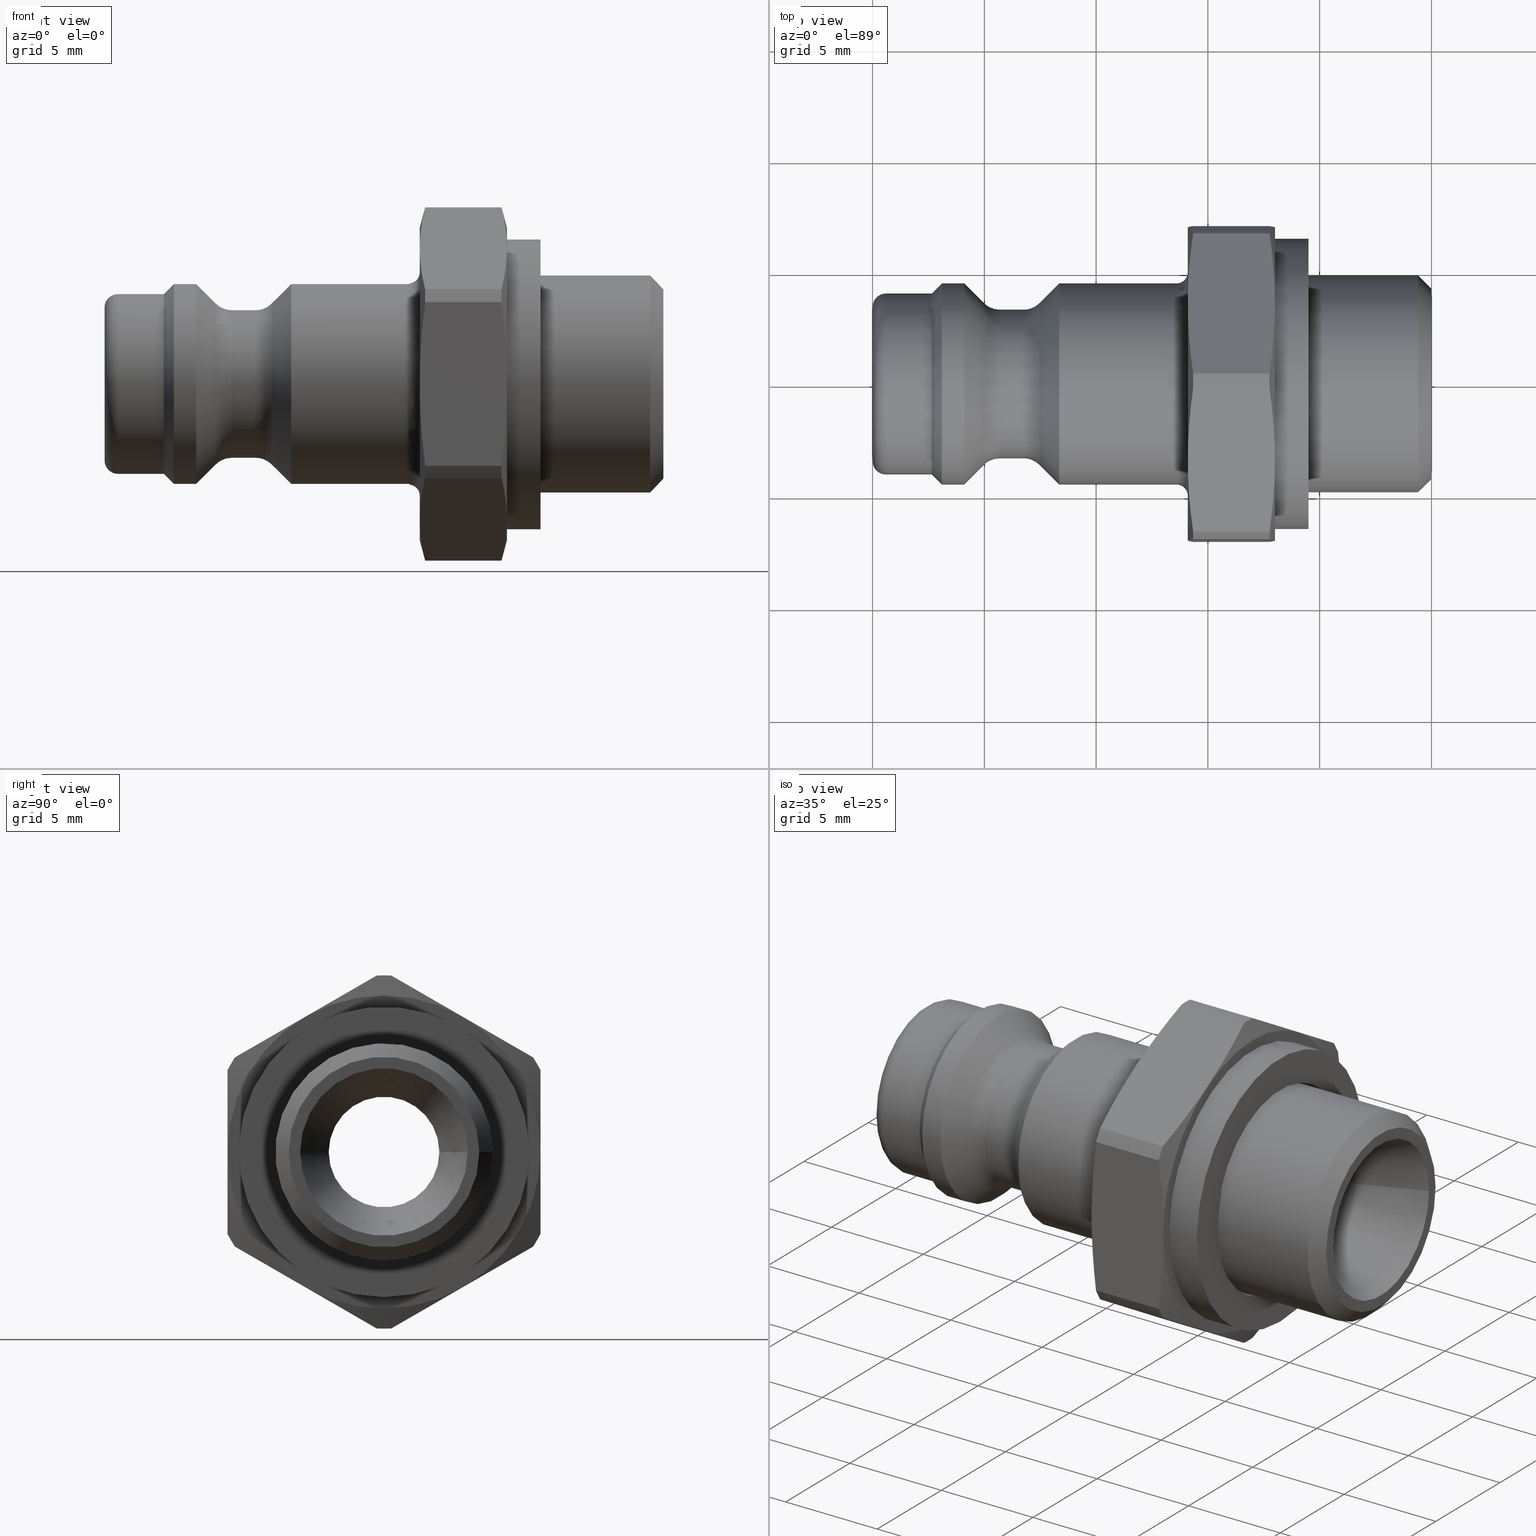
[diagram: canonical four-view strip — front | top / right | iso, engineering-drawing reading convention]
A machine part, canonical four-view strip (front | top / right | iso — engineering-drawing reading convention). The complete STEP part file that produces these views, byte-faithful:
ISO-10303-21;
HEADER;
/****************************************************************
 * Generated by software with PDE/Lib inside                    *
 * PDElib Version v51a, created Thu 01/14/2010                  *
 * ITI Transcendata (http://www.transcendata.com/)              *
 ****************************************************************/
FILE_DESCRIPTION((''),'2;1');
FILE_NAME('J:\\3D Zeichnungen_step\\Serie 21\\21sfaw10mxx.stp','2012-12-07T07:42:02',('IA176480'),(''),'Autodesk Inventor 2011','Autodesk Inventor 2011','');
FILE_SCHEMA(('AUTOMOTIVE_DESIGN { 1 0 10303 214 1 1 1 1 }'));
ENDSEC;
DATA;
#5=APPLICATION_CONTEXT('automotive design');
#6=APPLICATION_PROTOCOL_DEFINITION('International Standard','automotive_design',2001,#5);
#7=PRODUCT_CONTEXT('',#5,'mechanical');
#8=PRODUCT('D105315','D105315',$,(#7));
#9=PRODUCT_RELATED_PRODUCT_CATEGORY('part',$,(#8));
#10=PRODUCT_DEFINITION_FORMATION('',$,#8);
#11=PRODUCT_DEFINITION_CONTEXT('part definition',#5,'design');
#12=PRODUCT_DEFINITION('',$,#10,#11);
#18=(NAMED_UNIT(*)PLANE_ANGLE_UNIT()SI_UNIT($,.RADIAN.));
#19=DIMENSIONAL_EXPONENTS(0.0,0.0,0.0,0.0,0.0,0.0,0.0);
#20=PLANE_ANGLE_MEASURE_WITH_UNIT(PLANE_ANGLE_MEASURE(0.017453292500000),#18);
#24=(CONVERSION_BASED_UNIT('DEGREE',#20)NAMED_UNIT(#19)PLANE_ANGLE_UNIT());
#28=(NAMED_UNIT(*)SI_UNIT($,.STERADIAN.)SOLID_ANGLE_UNIT());
#32=(LENGTH_UNIT()NAMED_UNIT(*)SI_UNIT(.MILLI.,.METRE.));
#34=UNCERTAINTY_MEASURE_WITH_UNIT(LENGTH_MEASURE(0.010000000000000),#32,'DISTANCE_ACCURACY_VALUE','');
#36=(GEOMETRIC_REPRESENTATION_CONTEXT(3)GLOBAL_UNCERTAINTY_ASSIGNED_CONTEXT((#34))GLOBAL_UNIT_ASSIGNED_CONTEXT((#24,#28,#32))REPRESENTATION_CONTEXT('None','None'));
#37=AXIS2_PLACEMENT_3D('',#38,#39,#40);
#38=CARTESIAN_POINT('',(0.0,0.0,0.0));
#39=DIRECTION('',(0.0,0.0,1.0));
#40=DIRECTION('',(1.0,0.0,0.0));
#41=SHAPE_REPRESENTATION('',(#37,#1366,#1639),#36);
#42=PRODUCT_DEFINITION_SHAPE('','',#12);
#43=SHAPE_DEFINITION_REPRESENTATION(#42,#41);
#44=APPLICATION_CONTEXT('automotive design');
#45=APPLICATION_PROTOCOL_DEFINITION('International Standard','automotive_design',2001,#44);
#46=PRODUCT_CONTEXT('',#44,'mechanical');
#47=PRODUCT('D104294','D104294',$,(#46));
#48=PRODUCT_RELATED_PRODUCT_CATEGORY('part',$,(#47));
#49=PRODUCT_DEFINITION_FORMATION('',$,#47);
#50=PRODUCT_DEFINITION_CONTEXT('part definition',#44,'design');
#51=PRODUCT_DEFINITION('',$,#49,#50);
#57=(NAMED_UNIT(*)PLANE_ANGLE_UNIT()SI_UNIT($,.RADIAN.));
#58=DIMENSIONAL_EXPONENTS(0.0,0.0,0.0,0.0,0.0,0.0,0.0);
#59=PLANE_ANGLE_MEASURE_WITH_UNIT(PLANE_ANGLE_MEASURE(0.017453292500000),#57);
#63=(CONVERSION_BASED_UNIT('DEGREE',#59)NAMED_UNIT(#58)PLANE_ANGLE_UNIT());
#67=(NAMED_UNIT(*)SI_UNIT($,.STERADIAN.)SOLID_ANGLE_UNIT());
#71=(LENGTH_UNIT()NAMED_UNIT(*)SI_UNIT(.MILLI.,.METRE.));
#73=UNCERTAINTY_MEASURE_WITH_UNIT(LENGTH_MEASURE(0.010000000000000),#71,'DISTANCE_ACCURACY_VALUE','');
#75=(GEOMETRIC_REPRESENTATION_CONTEXT(3)GLOBAL_UNCERTAINTY_ASSIGNED_CONTEXT((#73))GLOBAL_UNIT_ASSIGNED_CONTEXT((#63,#67,#71))REPRESENTATION_CONTEXT('None','None'));
#76=AXIS2_PLACEMENT_3D('',#77,#78,#79);
#77=CARTESIAN_POINT('',(0.0,0.0,0.0));
#78=DIRECTION('',(0.0,0.0,1.0));
#79=DIRECTION('',(1.0,0.0,0.0));
#80=SHAPE_REPRESENTATION('',(#76),#75);
#81=PRODUCT_DEFINITION_SHAPE('','',#51);
#82=SHAPE_DEFINITION_REPRESENTATION(#81,#80);
#88=(NAMED_UNIT(*)PLANE_ANGLE_UNIT()SI_UNIT($,.RADIAN.));
#89=DIMENSIONAL_EXPONENTS(0.0,0.0,0.0,0.0,0.0,0.0,0.0);
#90=PLANE_ANGLE_MEASURE_WITH_UNIT(PLANE_ANGLE_MEASURE(0.017453292500000),#88);
#94=(CONVERSION_BASED_UNIT('DEGREE',#90)NAMED_UNIT(#89)PLANE_ANGLE_UNIT());
#98=(NAMED_UNIT(*)SI_UNIT($,.STERADIAN.)SOLID_ANGLE_UNIT());
#102=(LENGTH_UNIT()NAMED_UNIT(*)SI_UNIT(.MILLI.,.METRE.));
#104=UNCERTAINTY_MEASURE_WITH_UNIT(LENGTH_MEASURE(0.000001000000000),#102,'DISTANCE_ACCURACY_VALUE','');
#106=(GEOMETRIC_REPRESENTATION_CONTEXT(3)GLOBAL_UNCERTAINTY_ASSIGNED_CONTEXT((#104))GLOBAL_UNIT_ASSIGNED_CONTEXT((#94,#98,#102))REPRESENTATION_CONTEXT('','3D'));
#107=CARTESIAN_POINT('',(6.760786437626905,0.0,0.0));
#108=DIRECTION('',(1.0,0.0,0.0));
#109=DIRECTION('',(0.0,0.0,-1.0));
#110=AXIS2_PLACEMENT_3D('',#107,#108,#109);
#111=TOROIDAL_SURFACE('',#110,4.325000000000000,1.0);
#112=CARTESIAN_POINT('',(6.760786437626905,3.325000000000000,0.0));
#113=VERTEX_POINT('',#112);
#114=CARTESIAN_POINT('',(6.760786437626905,0.0,0.0));
#115=DIRECTION('',(1.0,0.0,0.0));
#116=DIRECTION('',(0.0,-1.0,0.0));
#117=AXIS2_PLACEMENT_3D('',#114,#115,#116);
#118=CIRCLE('',#117,3.325000000000000);
#119=EDGE_CURVE('',#113,#113,#118,.T.);
#120=ORIENTED_EDGE('',*,*,#119,.T.);
#121=EDGE_LOOP('',(#120));
#122=FACE_OUTER_BOUND('',#121,.T.);
#123=CARTESIAN_POINT('',(7.467893218813453,3.617893218813452,-8.861283E-016));
#124=VERTEX_POINT('',#123);
#125=CARTESIAN_POINT('',(7.467893218813453,0.0,-4.430641E-016));
#126=DIRECTION('',(-1.0,0.0,0.0));
#127=DIRECTION('',(0.0,-1.0,0.0));
#128=AXIS2_PLACEMENT_3D('',#125,#126,#127);
#129=CIRCLE('',#128,3.617893218813452);
#130=EDGE_CURVE('',#124,#124,#129,.T.);
#131=ORIENTED_EDGE('',*,*,#130,.T.);
#132=EDGE_LOOP('',(#131));
#133=FACE_BOUND('',#132,.T.);
#134=ADVANCED_FACE('',(#122,#133),#111,.F.);
#135=CARTESIAN_POINT('',(6.225000000000001,0.0,0.0));
#136=DIRECTION('',(1.0,0.0,0.0));
#137=DIRECTION('',(0.0,1.0,0.0));
#138=AXIS2_PLACEMENT_3D('',#135,#136,#137);
#139=CYLINDRICAL_SURFACE('',#138,3.325000000000000);
#140=CARTESIAN_POINT('',(5.689213562373095,3.325000000000000,-8.143901E-016));
#141=VERTEX_POINT('',#140);
#142=CARTESIAN_POINT('',(5.689213562373095,0.0,0.0));
#143=DIRECTION('',(-1.0,0.0,0.0));
#144=DIRECTION('',(0.0,-1.0,0.0));
#145=AXIS2_PLACEMENT_3D('',#142,#143,#144);
#146=CIRCLE('',#145,3.325000000000000);
#147=EDGE_CURVE('',#141,#141,#146,.T.);
#148=ORIENTED_EDGE('',*,*,#147,.F.);
#149=EDGE_LOOP('',(#148));
#150=FACE_OUTER_BOUND('',#149,.T.);
#151=ORIENTED_EDGE('',*,*,#119,.F.);
#152=EDGE_LOOP('',(#151));
#153=FACE_BOUND('',#152,.T.);
#154=ADVANCED_FACE('',(#150,#153),#139,.T.);
#155=CARTESIAN_POINT('',(7.762500000000000,0.0,0.0));
#156=DIRECTION('',(1.0,0.0,0.0));
#157=DIRECTION('',(0.0,1.0,0.0));
#158=AXIS2_PLACEMENT_3D('',#155,#156,#157);
#159=CONICAL_SURFACE('',#158,3.912500000000000,45.000000000000014);
#160=CARTESIAN_POINT('',(8.350000000000000,4.500000000000000,0.0));
#161=VERTEX_POINT('',#160);
#162=CARTESIAN_POINT('',(8.350000000000000,0.0,0.0));
#163=DIRECTION('',(1.0,0.0,0.0));
#164=DIRECTION('',(0.0,1.0,0.0));
#165=AXIS2_PLACEMENT_3D('',#162,#163,#164);
#166=CIRCLE('',#165,4.500000000000000);
#167=EDGE_CURVE('',#161,#161,#166,.T.);
#168=ORIENTED_EDGE('',*,*,#167,.F.);
#169=EDGE_LOOP('',(#168));
#170=FACE_OUTER_BOUND('',#169,.T.);
#171=ORIENTED_EDGE('',*,*,#130,.F.);
#172=EDGE_LOOP('',(#171));
#173=FACE_BOUND('',#172,.T.);
#174=ADVANCED_FACE('',(#170,#173),#159,.T.);
#175=CARTESIAN_POINT('',(5.689213562373095,0.0,0.0));
#176=DIRECTION('',(1.0,0.0,0.0));
#177=DIRECTION('',(0.0,0.0,-1.0));
#178=AXIS2_PLACEMENT_3D('',#175,#176,#177);
#179=TOROIDAL_SURFACE('',#178,4.325000000000000,1.0);
#180=CARTESIAN_POINT('',(4.982106781186547,3.617893218813452,-6.162976E-032));
#181=VERTEX_POINT('',#180);
#182=CARTESIAN_POINT('',(4.982106781186547,0.0,-4.430641E-016));
#183=DIRECTION('',(1.0,0.0,0.0));
#184=DIRECTION('',(0.0,-1.0,0.0));
#185=AXIS2_PLACEMENT_3D('',#182,#183,#184);
#186=CIRCLE('',#185,3.617893218813452);
#187=EDGE_CURVE('',#181,#181,#186,.T.);
#188=ORIENTED_EDGE('',*,*,#187,.T.);
#189=EDGE_LOOP('',(#188));
#190=FACE_OUTER_BOUND('',#189,.T.);
#191=ORIENTED_EDGE('',*,*,#147,.T.);
#192=EDGE_LOOP('',(#191));
#193=FACE_BOUND('',#192,.T.);
#194=ADVANCED_FACE('',(#190,#193),#179,.F.);
#195=CARTESIAN_POINT('',(4.687500000000000,0.0,0.0));
#196=DIRECTION('',(-1.0,0.0,0.0));
#197=DIRECTION('',(0.0,1.0,0.0));
#198=AXIS2_PLACEMENT_3D('',#195,#196,#197);
#199=CONICAL_SURFACE('',#198,3.912500000000000,45.000000000000007);
#200=CARTESIAN_POINT('',(4.100000000000000,4.500000000000000,0.0));
#201=VERTEX_POINT('',#200);
#202=CARTESIAN_POINT('',(4.100000000000000,0.0,0.0));
#203=DIRECTION('',(1.0,0.0,0.0));
#204=DIRECTION('',(0.0,1.0,0.0));
#205=AXIS2_PLACEMENT_3D('',#202,#203,#204);
#206=CIRCLE('',#205,4.500000000000000);
#207=EDGE_CURVE('',#201,#201,#206,.T.);
#208=ORIENTED_EDGE('',*,*,#207,.T.);
#209=EDGE_LOOP('',(#208));
#210=FACE_OUTER_BOUND('',#209,.T.);
#211=ORIENTED_EDGE('',*,*,#187,.F.);
#212=EDGE_LOOP('',(#211));
#213=FACE_BOUND('',#212,.T.);
#214=ADVANCED_FACE('',(#210,#213),#199,.T.);
#215=CARTESIAN_POINT('',(13.600000000000001,0.0,0.0));
#216=DIRECTION('',(1.0,0.0,0.0));
#217=DIRECTION('',(0.0,0.0,-1.0));
#218=AXIS2_PLACEMENT_3D('',#215,#216,#217);
#219=TOROIDAL_SURFACE('',#218,5.0,0.500000000000000);
#220=CARTESIAN_POINT('',(13.600000000000001,4.500000000000000,0.0));
#221=VERTEX_POINT('',#220);
#222=CARTESIAN_POINT('',(13.600000000000001,0.0,0.0));
#223=DIRECTION('',(1.0,0.0,0.0));
#224=DIRECTION('',(0.0,-1.0,0.0));
#225=AXIS2_PLACEMENT_3D('',#222,#223,#224);
#226=CIRCLE('',#225,4.500000000000000);
#227=EDGE_CURVE('',#221,#221,#226,.T.);
#228=ORIENTED_EDGE('',*,*,#227,.T.);
#229=EDGE_LOOP('',(#228));
#230=FACE_OUTER_BOUND('',#229,.T.);
#231=CARTESIAN_POINT('',(14.100000000000001,5.0,-1.224647E-015));
#232=VERTEX_POINT('',#231);
#233=CARTESIAN_POINT('',(14.100000000000001,0.0,0.0));
#234=DIRECTION('',(-1.0,0.0,0.0));
#235=DIRECTION('',(0.0,-1.0,0.0));
#236=AXIS2_PLACEMENT_3D('',#233,#234,#235);
#237=CIRCLE('',#236,5.0);
#238=EDGE_CURVE('',#232,#232,#237,.T.);
#239=ORIENTED_EDGE('',*,*,#238,.T.);
#240=EDGE_LOOP('',(#239));
#241=FACE_BOUND('',#240,.T.);
#242=ADVANCED_FACE('',(#230,#241),#219,.F.);
#243=CARTESIAN_POINT('',(11.225000000000001,0.0,0.0));
#244=DIRECTION('',(1.0,0.0,0.0));
#245=DIRECTION('',(0.0,1.0,0.0));
#246=AXIS2_PLACEMENT_3D('',#243,#244,#245);
#247=CYLINDRICAL_SURFACE('',#246,4.500000000000000);
#248=ORIENTED_EDGE('',*,*,#167,.T.);
#249=EDGE_LOOP('',(#248));
#250=FACE_OUTER_BOUND('',#249,.T.);
#251=ORIENTED_EDGE('',*,*,#227,.F.);
#252=EDGE_LOOP('',(#251));
#253=FACE_BOUND('',#252,.T.);
#254=ADVANCED_FACE('',(#250,#253),#247,.T.);
#255=CARTESIAN_POINT('',(14.100000000000001,5.750000000000001,0.0));
#256=DIRECTION('',(-1.0,0.0,0.0));
#257=DIRECTION('',(0.0,0.0,1.0));
#258=AXIS2_PLACEMENT_3D('',#255,#256,#257);
#259=PLANE('',#258);
#260=CARTESIAN_POINT('',(14.100000000000001,7.000000000000001,0.0));
#261=VERTEX_POINT('',#260);
#262=CARTESIAN_POINT('',(14.100000000000001,3.500000000000003,6.062177826491073));
#263=VERTEX_POINT('',#262);
#264=CARTESIAN_POINT('',(14.100000000000001,0.0,0.0));
#265=DIRECTION('',(1.0,0.0,0.0));
#266=DIRECTION('',(0.0,1.0,0.0));
#267=AXIS2_PLACEMENT_3D('',#264,#265,#266);
#268=CIRCLE('',#267,7.000000000000001);
#269=EDGE_CURVE('',#261,#263,#268,.T.);
#270=ORIENTED_EDGE('',*,*,#269,.F.);
#271=CARTESIAN_POINT('',(14.100000000000001,3.499999999999997,-6.062177826491078));
#272=VERTEX_POINT('',#271);
#273=CARTESIAN_POINT('',(14.100000000000001,0.0,0.0));
#274=DIRECTION('',(1.0,0.0,0.0));
#275=DIRECTION('',(0.0,1.0,0.0));
#276=AXIS2_PLACEMENT_3D('',#273,#274,#275);
#277=CIRCLE('',#276,7.000000000000001);
#278=EDGE_CURVE('',#272,#261,#277,.T.);
#279=ORIENTED_EDGE('',*,*,#278,.F.);
#280=CARTESIAN_POINT('',(14.100000000000001,-3.500000000000005,-6.062177826491072));
#281=VERTEX_POINT('',#280);
#282=CARTESIAN_POINT('',(14.100000000000001,0.0,0.0));
#283=DIRECTION('',(1.0,0.0,0.0));
#284=DIRECTION('',(0.0,1.0,0.0));
#285=AXIS2_PLACEMENT_3D('',#282,#283,#284);
#286=CIRCLE('',#285,7.000000000000001);
#287=EDGE_CURVE('',#281,#272,#286,.T.);
#288=ORIENTED_EDGE('',*,*,#287,.F.);
#289=CARTESIAN_POINT('',(14.100000000000001,-7.000000000000004,1.165734E-015));
#290=VERTEX_POINT('',#289);
#291=CARTESIAN_POINT('',(14.100000000000001,0.0,0.0));
#292=DIRECTION('',(1.0,0.0,0.0));
#293=DIRECTION('',(0.0,1.0,0.0));
#294=AXIS2_PLACEMENT_3D('',#291,#292,#293);
#295=CIRCLE('',#294,7.000000000000001);
#296=EDGE_CURVE('',#290,#281,#295,.T.);
#297=ORIENTED_EDGE('',*,*,#296,.F.);
#298=CARTESIAN_POINT('',(14.100000000000001,-3.500000000000001,6.062177826491075));
#299=VERTEX_POINT('',#298);
#300=CARTESIAN_POINT('',(14.100000000000001,0.0,0.0));
#301=DIRECTION('',(1.0,0.0,0.0));
#302=DIRECTION('',(0.0,1.0,0.0));
#303=AXIS2_PLACEMENT_3D('',#300,#301,#302);
#304=CIRCLE('',#303,7.000000000000001);
#305=EDGE_CURVE('',#299,#290,#304,.T.);
#306=ORIENTED_EDGE('',*,*,#305,.F.);
#307=CARTESIAN_POINT('',(14.100000000000001,0.0,0.0));
#308=DIRECTION('',(1.0,0.0,0.0));
#309=DIRECTION('',(0.0,1.0,0.0));
#310=AXIS2_PLACEMENT_3D('',#307,#308,#309);
#311=CIRCLE('',#310,7.000000000000001);
#312=EDGE_CURVE('',#263,#299,#311,.T.);
#313=ORIENTED_EDGE('',*,*,#312,.F.);
#314=EDGE_LOOP('',(#270,#279,#288,#297,#306,#313));
#315=FACE_OUTER_BOUND('',#314,.T.);
#316=ORIENTED_EDGE('',*,*,#238,.F.);
#317=EDGE_LOOP('',(#316));
#318=FACE_BOUND('',#317,.T.);
#319=ADVANCED_FACE('',(#315,#318),#259,.T.);
#320=CARTESIAN_POINT('',(0.600000000000000,0.0,0.0));
#321=DIRECTION('',(1.0,0.0,0.0));
#322=DIRECTION('',(0.0,0.0,-1.0));
#323=AXIS2_PLACEMENT_3D('',#320,#321,#322);
#324=TOROIDAL_SURFACE('',#323,3.450000000000000,0.600000000000000);
#325=CARTESIAN_POINT('',(0.0,3.450000000000000,0.0));
#326=VERTEX_POINT('',#325);
#327=CARTESIAN_POINT('',(0.0,0.0,0.0));
#328=DIRECTION('',(1.0,0.0,0.0));
#329=DIRECTION('',(0.0,-1.0,0.0));
#330=AXIS2_PLACEMENT_3D('',#327,#328,#329);
#331=CIRCLE('',#330,3.450000000000000);
#332=EDGE_CURVE('',#326,#326,#331,.T.);
#333=ORIENTED_EDGE('',*,*,#332,.T.);
#334=EDGE_LOOP('',(#333));
#335=FACE_OUTER_BOUND('',#334,.T.);
#336=CARTESIAN_POINT('',(0.600000000000000,4.050000000000001,-9.919639E-016));
#337=VERTEX_POINT('',#336);
#338=CARTESIAN_POINT('',(0.600000000000000,0.0,0.0));
#339=DIRECTION('',(-1.0,0.0,0.0));
#340=DIRECTION('',(0.0,-1.0,0.0));
#341=AXIS2_PLACEMENT_3D('',#338,#339,#340);
#342=CIRCLE('',#341,4.050000000000001);
#343=EDGE_CURVE('',#337,#337,#342,.T.);
#344=ORIENTED_EDGE('',*,*,#343,.T.);
#345=EDGE_LOOP('',(#344));
#346=FACE_BOUND('',#345,.T.);
#347=ADVANCED_FACE('',(#335,#346),#324,.T.);
#348=CARTESIAN_POINT('',(1.325000000000000,0.0,0.0));
#349=DIRECTION('',(1.0,0.0,0.0));
#350=DIRECTION('',(0.0,1.0,0.0));
#351=AXIS2_PLACEMENT_3D('',#348,#349,#350);
#352=CYLINDRICAL_SURFACE('',#351,4.050000000000001);
#353=CARTESIAN_POINT('',(2.650000000000000,4.050000000000001,0.0));
#354=VERTEX_POINT('',#353);
#355=CARTESIAN_POINT('',(2.650000000000000,0.0,0.0));
#356=DIRECTION('',(1.0,0.0,0.0));
#357=DIRECTION('',(0.0,1.0,0.0));
#358=AXIS2_PLACEMENT_3D('',#355,#356,#357);
#359=CIRCLE('',#358,4.050000000000001);
#360=EDGE_CURVE('',#354,#354,#359,.T.);
#361=ORIENTED_EDGE('',*,*,#360,.F.);
#362=EDGE_LOOP('',(#361));
#363=FACE_OUTER_BOUND('',#362,.T.);
#364=ORIENTED_EDGE('',*,*,#343,.F.);
#365=EDGE_LOOP('',(#364));
#366=FACE_BOUND('',#365,.T.);
#367=ADVANCED_FACE('',(#363,#366),#352,.T.);
#368=CARTESIAN_POINT('',(0.0,3.262499999999999,0.0));
#369=DIRECTION('',(-1.0,0.0,0.0));
#370=DIRECTION('',(0.0,0.0,1.0));
#371=AXIS2_PLACEMENT_3D('',#368,#369,#370);
#372=PLANE('',#371);
#373=ORIENTED_EDGE('',*,*,#332,.F.);
#374=EDGE_LOOP('',(#373));
#375=FACE_OUTER_BOUND('',#374,.T.);
#376=CARTESIAN_POINT('',(0.0,2.474999999999999,0.0));
#377=VERTEX_POINT('',#376);
#378=CARTESIAN_POINT('',(0.0,0.0,0.0));
#379=DIRECTION('',(1.0,0.0,0.0));
#380=DIRECTION('',(0.0,1.0,0.0));
#381=AXIS2_PLACEMENT_3D('',#378,#379,#380);
#382=CIRCLE('',#381,2.474999999999999);
#383=EDGE_CURVE('',#377,#377,#382,.T.);
#384=ORIENTED_EDGE('',*,*,#383,.T.);
#385=EDGE_LOOP('',(#384));
#386=FACE_BOUND('',#385,.T.);
#387=ADVANCED_FACE('',(#375,#386),#372,.T.);
#388=CARTESIAN_POINT('',(19.405182586687065,3.499999999999999,-6.062177826491080));
#389=DIRECTION('',(3.597954E-016,-0.499999999999999,0.866025403784439));
#390=DIRECTION('',(1.997266E-032,-0.866025403784439,-0.499999999999999));
#391=AXIS2_PLACEMENT_3D('',#388,#389,#390);
#392=PLANE('',#391);
#393=CARTESIAN_POINT('',(14.341154273188012,6.671356176779890,-4.231194484131028));
#394=VERTEX_POINT('',#393);
#395=CARTESIAN_POINT('',(14.341154273188012,6.671356176779897,-4.231194484131025));
#396=CARTESIAN_POINT('',(14.100000000000000,4.989898874997261,-5.201984309946090));
#397=CARTESIAN_POINT('',(14.100000000000001,3.499999999999997,-6.062177826491078));
#405=(BOUNDED_CURVE()B_SPLINE_CURVE(2,(#395,#396,#397),.UNSPECIFIED.,.F.,.U.)B_SPLINE_CURVE_WITH_KNOTS((3,3),(0.0,0.367169590188575),.UNSPECIFIED.)CURVE()GEOMETRIC_REPRESENTATION_ITEM()RATIONAL_B_SPLINE_CURVE((1.0,1.031642241421700,1.0))REPRESENTATION_ITEM(''));
#406=EDGE_CURVE('',#394,#272,#405,.T.);
#407=ORIENTED_EDGE('',*,*,#406,.F.);
#408=CARTESIAN_POINT('',(17.758845726811991,6.671356176779886,-4.231194484131033));
#409=VERTEX_POINT('',#408);
#410=CARTESIAN_POINT('',(17.758845726811991,6.671356176779886,-4.231194484131033));
#411=DIRECTION('',(-1.0,0.0,0.0));
#412=VECTOR('',#411,3.417691453623977);
#413=LINE('',#410,#412);
#414=EDGE_CURVE('',#409,#394,#413,.T.);
#415=ORIENTED_EDGE('',*,*,#414,.F.);
#416=CARTESIAN_POINT('',(18.0,3.499999999999998,-6.062177826491080));
#417=VERTEX_POINT('',#416);
#418=CARTESIAN_POINT('',(17.999999999999996,3.499999999999997,-6.062177826491080));
#419=CARTESIAN_POINT('',(17.999999999999996,4.989898874997254,-5.201984309946093));
#420=CARTESIAN_POINT('',(17.758845726811991,6.671356176779888,-4.231194484131032));
#428=(BOUNDED_CURVE()B_SPLINE_CURVE(2,(#418,#419,#420),.UNSPECIFIED.,.F.,.U.)B_SPLINE_CURVE_WITH_KNOTS((3,3),(0.367169590188574,0.734339180377148),.UNSPECIFIED.)CURVE()GEOMETRIC_REPRESENTATION_ITEM()RATIONAL_B_SPLINE_CURVE((1.0,1.031642241421738,1.0))REPRESENTATION_ITEM(''));
#429=EDGE_CURVE('',#417,#409,#428,.T.);
#430=ORIENTED_EDGE('',*,*,#429,.F.);
#431=CARTESIAN_POINT('',(17.758845726811991,0.328643823220111,-7.893161168851126));
#432=VERTEX_POINT('',#431);
#433=CARTESIAN_POINT('',(17.758845726811991,0.328643823220109,-7.893161168851128));
#434=CARTESIAN_POINT('',(17.999999999999996,2.010101125002728,-6.922371343036073));
#435=CARTESIAN_POINT('',(17.999999999999996,3.499999999999997,-6.062177826491080));
#443=(BOUNDED_CURVE()B_SPLINE_CURVE(2,(#433,#434,#435),.UNSPECIFIED.,.F.,.U.)B_SPLINE_CURVE_WITH_KNOTS((3,3),(0.0,0.367169590188574),.UNSPECIFIED.)CURVE()GEOMETRIC_REPRESENTATION_ITEM()RATIONAL_B_SPLINE_CURVE((1.0,1.031642241421768,1.0))REPRESENTATION_ITEM(''));
#444=EDGE_CURVE('',#432,#417,#443,.T.);
#445=ORIENTED_EDGE('',*,*,#444,.F.);
#446=CARTESIAN_POINT('',(14.341154273188012,0.328643823220104,-7.893161168851127));
#447=VERTEX_POINT('',#446);
#448=CARTESIAN_POINT('',(14.341154273188014,0.328643823220111,-7.893161168851126));
#449=DIRECTION('',(1.0,0.0,0.0));
#450=VECTOR('',#449,3.417691453623977);
#451=LINE('',#448,#450);
#452=EDGE_CURVE('',#447,#432,#451,.T.);
#453=ORIENTED_EDGE('',*,*,#452,.F.);
#454=CARTESIAN_POINT('',(14.100000000000001,3.499999999999997,-6.062177826491078));
#455=CARTESIAN_POINT('',(14.100000000000003,2.010101125002747,-6.922371343036060));
#456=CARTESIAN_POINT('',(14.341154273188012,0.328643823220099,-7.893161168851133));
#464=(BOUNDED_CURVE()B_SPLINE_CURVE(2,(#454,#455,#456),.UNSPECIFIED.,.F.,.U.)B_SPLINE_CURVE_WITH_KNOTS((3,3),(0.367169590188575,0.734339180377151),.UNSPECIFIED.)CURVE()GEOMETRIC_REPRESENTATION_ITEM()RATIONAL_B_SPLINE_CURVE((1.0,1.031642241421706,1.0))REPRESENTATION_ITEM(''));
#465=EDGE_CURVE('',#272,#447,#464,.T.);
#466=ORIENTED_EDGE('',*,*,#465,.F.);
#467=EDGE_LOOP('',(#407,#415,#430,#445,#453,#466));
#468=FACE_OUTER_BOUND('',#467,.T.);
#469=ADVANCED_FACE('',(#468),#392,.F.);
#470=CARTESIAN_POINT('',(19.405182586687065,-3.500000000000006,-6.062177826491074));
#471=DIRECTION('',(3.597954E-016,0.500000000000000,0.866025403784438));
#472=DIRECTION('',(0.0,-0.866025403784438,0.500000000000000));
#473=AXIS2_PLACEMENT_3D('',#470,#471,#472);
#474=PLANE('',#473);
#475=CARTESIAN_POINT('',(14.341154273188012,-0.328643823220116,-7.893161168851126));
#476=VERTEX_POINT('',#475);
#477=CARTESIAN_POINT('',(14.341154273188012,-0.328643823220105,-7.893161168851131));
#478=CARTESIAN_POINT('',(14.100000000000000,-2.010101125002741,-6.922371343036065));
#479=CARTESIAN_POINT('',(14.100000000000001,-3.500000000000005,-6.062177826491072));
#487=(BOUNDED_CURVE()B_SPLINE_CURVE(2,(#477,#478,#479),.UNSPECIFIED.,.F.,.U.)B_SPLINE_CURVE_WITH_KNOTS((3,3),(0.0,0.367169590188576),.UNSPECIFIED.)CURVE()GEOMETRIC_REPRESENTATION_ITEM()RATIONAL_B_SPLINE_CURVE((1.0,1.031642241421718,1.0))REPRESENTATION_ITEM(''));
#488=EDGE_CURVE('',#476,#281,#487,.T.);
#489=ORIENTED_EDGE('',*,*,#488,.F.);
#490=CARTESIAN_POINT('',(17.758845726811991,-0.328643823220118,-7.893161168851126));
#491=VERTEX_POINT('',#490);
#492=CARTESIAN_POINT('',(17.758845726811991,-0.328643823220118,-7.893161168851126));
#493=DIRECTION('',(-1.0,0.0,0.0));
#494=VECTOR('',#493,3.417691453623977);
#495=LINE('',#492,#494);
#496=EDGE_CURVE('',#491,#476,#495,.T.);
#497=ORIENTED_EDGE('',*,*,#496,.F.);
#498=CARTESIAN_POINT('',(18.0,-3.500000000000006,-6.062177826491073));
#499=VERTEX_POINT('',#498);
#500=CARTESIAN_POINT('',(18.0,-3.500000000000006,-6.062177826491073));
#501=CARTESIAN_POINT('',(18.0,-2.010101125002759,-6.922371343036056));
#502=CARTESIAN_POINT('',(17.758845726811991,-0.328643823220115,-7.893161168851128));
#510=(BOUNDED_CURVE()B_SPLINE_CURVE(2,(#500,#501,#502),.UNSPECIFIED.,.F.,.U.)B_SPLINE_CURVE_WITH_KNOTS((3,3),(0.367169590188574,0.734339180377149),.UNSPECIFIED.)CURVE()GEOMETRIC_REPRESENTATION_ITEM()RATIONAL_B_SPLINE_CURVE((1.0,1.031642241421747,1.0))REPRESENTATION_ITEM(''));
#511=EDGE_CURVE('',#499,#491,#510,.T.);
#512=ORIENTED_EDGE('',*,*,#511,.F.);
#513=CARTESIAN_POINT('',(17.758845726811991,-6.671356176779895,-4.231194484131020));
#514=VERTEX_POINT('',#513);
#515=CARTESIAN_POINT('',(17.758845726811991,-6.671356176779896,-4.231194484131019));
#516=CARTESIAN_POINT('',(18.0,-4.989898874997269,-5.201984309946082));
#517=CARTESIAN_POINT('',(18.0,-3.500000000000006,-6.062177826491073));
#525=(BOUNDED_CURVE()B_SPLINE_CURVE(2,(#515,#516,#517),.UNSPECIFIED.,.F.,.U.)B_SPLINE_CURVE_WITH_KNOTS((3,3),(0.0,0.367169590188574),.UNSPECIFIED.)CURVE()GEOMETRIC_REPRESENTATION_ITEM()RATIONAL_B_SPLINE_CURVE((1.0,1.031642241421734,1.0))REPRESENTATION_ITEM(''));
#526=EDGE_CURVE('',#514,#499,#525,.T.);
#527=ORIENTED_EDGE('',*,*,#526,.F.);
#528=CARTESIAN_POINT('',(14.341154273188012,-6.671356176779895,-4.231194484131018));
#529=VERTEX_POINT('',#528);
#530=CARTESIAN_POINT('',(14.341154273188014,-6.671356176779895,-4.231194484131020));
#531=DIRECTION('',(1.0,0.0,0.0));
#532=VECTOR('',#531,3.417691453623977);
#533=LINE('',#530,#532);
#534=EDGE_CURVE('',#529,#514,#533,.T.);
#535=ORIENTED_EDGE('',*,*,#534,.F.);
#536=CARTESIAN_POINT('',(14.100000000000001,-3.500000000000005,-6.062177826491072));
#537=CARTESIAN_POINT('',(14.100000000000003,-4.989898874997280,-5.201984309946073));
#538=CARTESIAN_POINT('',(14.341154273188012,-6.671356176779901,-4.231194484131014));
#546=(BOUNDED_CURVE()B_SPLINE_CURVE(2,(#536,#537,#538),.UNSPECIFIED.,.F.,.U.)B_SPLINE_CURVE_WITH_KNOTS((3,3),(0.367169590188576,0.734339180377151),.UNSPECIFIED.)CURVE()GEOMETRIC_REPRESENTATION_ITEM()RATIONAL_B_SPLINE_CURVE((1.0,1.031642241421748,1.0))REPRESENTATION_ITEM(''));
#547=EDGE_CURVE('',#281,#529,#546,.T.);
#548=ORIENTED_EDGE('',*,*,#547,.F.);
#549=EDGE_LOOP('',(#489,#497,#512,#527,#535,#548));
#550=FACE_OUTER_BOUND('',#549,.T.);
#551=ADVANCED_FACE('',(#550),#474,.F.);
#552=CARTESIAN_POINT('',(19.405182586687065,-7.000000000000006,1.110223E-015));
#553=DIRECTION('',(0.0,1.0,0.0));
#554=DIRECTION('',(0.0,0.0,1.0));
#555=AXIS2_PLACEMENT_3D('',#552,#553,#554);
#556=PLANE('',#555);
#557=CARTESIAN_POINT('',(14.341154273188012,-7.000000000000005,-3.661966684720104));
#558=VERTEX_POINT('',#557);
#559=CARTESIAN_POINT('',(14.341154273188012,-7.000000000000004,-3.661966684720116));
#560=CARTESIAN_POINT('',(14.100000000000000,-7.000000000000004,-1.720387033089978));
#561=CARTESIAN_POINT('',(14.100000000000001,-7.000000000000004,1.165734E-015));
#569=(BOUNDED_CURVE()B_SPLINE_CURVE(2,(#559,#560,#561),.UNSPECIFIED.,.F.,.U.)B_SPLINE_CURVE_WITH_KNOTS((3,3),(0.0,0.367169590188576),.UNSPECIFIED.)CURVE()GEOMETRIC_REPRESENTATION_ITEM()RATIONAL_B_SPLINE_CURVE((1.0,1.031642241421711,1.0))REPRESENTATION_ITEM(''));
#570=EDGE_CURVE('',#558,#290,#569,.T.);
#571=ORIENTED_EDGE('',*,*,#570,.F.);
#572=CARTESIAN_POINT('',(17.758845726811991,-7.000000000000007,-3.661966684720099));
#573=VERTEX_POINT('',#572);
#574=CARTESIAN_POINT('',(17.758845726811991,-7.000000000000006,-3.661966684720102));
#575=DIRECTION('',(-1.0,0.0,0.0));
#576=VECTOR('',#575,3.417691453623977);
#577=LINE('',#574,#576);
#578=EDGE_CURVE('',#573,#558,#577,.T.);
#579=ORIENTED_EDGE('',*,*,#578,.F.);
#580=CARTESIAN_POINT('',(18.0,-7.000000000000006,1.165734E-015));
#581=VERTEX_POINT('',#580);
#582=CARTESIAN_POINT('',(17.999999999999996,-7.000000000000006,1.165734E-015));
#583=CARTESIAN_POINT('',(17.999999999999993,-7.000000000000006,-1.720387033089965));
#584=CARTESIAN_POINT('',(17.758845726811991,-7.000000000000007,-3.661966684720100));
#592=(BOUNDED_CURVE()B_SPLINE_CURVE(2,(#582,#583,#584),.UNSPECIFIED.,.F.,.U.)B_SPLINE_CURVE_WITH_KNOTS((3,3),(0.367169590188574,0.734339180377148),.UNSPECIFIED.)CURVE()GEOMETRIC_REPRESENTATION_ITEM()RATIONAL_B_SPLINE_CURVE((1.0,1.031642241421738,1.0))REPRESENTATION_ITEM(''));
#593=EDGE_CURVE('',#581,#573,#592,.T.);
#594=ORIENTED_EDGE('',*,*,#593,.F.);
#595=CARTESIAN_POINT('',(17.758845726811991,-7.000000000000005,3.661966684720102));
#596=VERTEX_POINT('',#595);
#597=CARTESIAN_POINT('',(17.758845726811991,-7.000000000000005,3.661966684720102));
#598=CARTESIAN_POINT('',(18.0,-7.000000000000006,1.720387033089968));
#599=CARTESIAN_POINT('',(17.999999999999996,-7.000000000000006,1.165734E-015));
#607=(BOUNDED_CURVE()B_SPLINE_CURVE(2,(#597,#598,#599),.UNSPECIFIED.,.F.,.U.)B_SPLINE_CURVE_WITH_KNOTS((3,3),(0.0,0.367169590188574),.UNSPECIFIED.)CURVE()GEOMETRIC_REPRESENTATION_ITEM()RATIONAL_B_SPLINE_CURVE((1.0,1.031642241421743,1.0))REPRESENTATION_ITEM(''));
#608=EDGE_CURVE('',#596,#581,#607,.T.);
#609=ORIENTED_EDGE('',*,*,#608,.F.);
#610=CARTESIAN_POINT('',(14.341154273188012,-7.000000000000003,3.661966684720106));
#611=VERTEX_POINT('',#610);
#612=CARTESIAN_POINT('',(14.341154273188014,-7.000000000000004,3.661966684720104));
#613=DIRECTION('',(1.0,0.0,0.0));
#614=VECTOR('',#613,3.417691453623977);
#615=LINE('',#612,#614);
#616=EDGE_CURVE('',#611,#596,#615,.T.);
#617=ORIENTED_EDGE('',*,*,#616,.F.);
#618=CARTESIAN_POINT('',(14.100000000000001,-7.000000000000004,1.165734E-015));
#619=CARTESIAN_POINT('',(14.100000000000003,-7.000000000000004,1.720387033089980));
#620=CARTESIAN_POINT('',(14.341154273188012,-7.000000000000003,3.661966684720119));
#628=(BOUNDED_CURVE()B_SPLINE_CURVE(2,(#618,#619,#620),.UNSPECIFIED.,.F.,.U.)B_SPLINE_CURVE_WITH_KNOTS((3,3),(0.367169590188576,0.734339180377152),.UNSPECIFIED.)CURVE()GEOMETRIC_REPRESENTATION_ITEM()RATIONAL_B_SPLINE_CURVE((1.0,1.031642241421713,1.0))REPRESENTATION_ITEM(''));
#629=EDGE_CURVE('',#290,#611,#628,.T.);
#630=ORIENTED_EDGE('',*,*,#629,.F.);
#631=EDGE_LOOP('',(#571,#579,#594,#609,#617,#630));
#632=FACE_OUTER_BOUND('',#631,.T.);
#633=ADVANCED_FACE('',(#632),#556,.F.);
#634=CARTESIAN_POINT('',(19.405182586687065,-3.500000000000001,6.062177826491077));
#635=DIRECTION('',(3.597954E-016,0.500000000000000,-0.866025403784439));
#636=DIRECTION('',(0.0,0.866025403784439,0.500000000000000));
#637=AXIS2_PLACEMENT_3D('',#634,#635,#636);
#638=PLANE('',#637);
#639=CARTESIAN_POINT('',(14.341154273188012,-6.671356176779890,4.231194484131025));
#640=VERTEX_POINT('',#639);
#641=CARTESIAN_POINT('',(14.341154273188012,-6.671356176779901,4.231194484131017));
#642=CARTESIAN_POINT('',(14.099999999999998,-4.989898874997236,5.201984309946099));
#643=CARTESIAN_POINT('',(14.100000000000001,-3.499999999999999,6.062177826491074));
#651=(BOUNDED_CURVE()B_SPLINE_CURVE(2,(#641,#642,#643),.UNSPECIFIED.,.F.,.U.)B_SPLINE_CURVE_WITH_KNOTS((3,3),(0.0,0.367169590188576),.UNSPECIFIED.)CURVE()GEOMETRIC_REPRESENTATION_ITEM()RATIONAL_B_SPLINE_CURVE((1.0,1.031642241421719,1.0))REPRESENTATION_ITEM(''));
#652=EDGE_CURVE('',#640,#299,#651,.T.);
#653=ORIENTED_EDGE('',*,*,#652,.F.);
#654=CARTESIAN_POINT('',(17.758845726811991,-6.671356176779890,4.231194484131025));
#655=VERTEX_POINT('',#654);
#656=CARTESIAN_POINT('',(17.758845726811991,-6.671356176779890,4.231194484131025));
#657=DIRECTION('',(-1.0,0.0,0.0));
#658=VECTOR('',#657,3.417691453623977);
#659=LINE('',#656,#658);
#660=EDGE_CURVE('',#655,#640,#659,.T.);
#661=ORIENTED_EDGE('',*,*,#660,.F.);
#662=CARTESIAN_POINT('',(18.0,-3.500000000000001,6.062177826491075));
#663=VERTEX_POINT('',#662);
#664=CARTESIAN_POINT('',(18.0,-3.500000000000001,6.062177826491077));
#665=CARTESIAN_POINT('',(18.0,-4.989898874997237,5.201984309946103));
#666=CARTESIAN_POINT('',(17.758845726811991,-6.671356176779890,4.231194484131025));
#674=(BOUNDED_CURVE()B_SPLINE_CURVE(2,(#664,#665,#666),.UNSPECIFIED.,.F.,.U.)B_SPLINE_CURVE_WITH_KNOTS((3,3),(0.367169590188574,0.734339180377149),.UNSPECIFIED.)CURVE()GEOMETRIC_REPRESENTATION_ITEM()RATIONAL_B_SPLINE_CURVE((1.0,1.031642241421692,1.0))REPRESENTATION_ITEM(''));
#675=EDGE_CURVE('',#663,#655,#674,.T.);
#676=ORIENTED_EDGE('',*,*,#675,.F.);
#677=CARTESIAN_POINT('',(17.758845726811991,-0.328643823220111,7.893161168851126));
#678=VERTEX_POINT('',#677);
#679=CARTESIAN_POINT('',(17.758845726811991,-0.328643823220111,7.893161168851127));
#680=CARTESIAN_POINT('',(18.0,-2.010101125002752,6.922371343036059));
#681=CARTESIAN_POINT('',(18.0,-3.500000000000001,6.062177826491077));
#689=(BOUNDED_CURVE()B_SPLINE_CURVE(2,(#679,#680,#681),.UNSPECIFIED.,.F.,.U.)B_SPLINE_CURVE_WITH_KNOTS((3,3),(0.0,0.367169590188574),.UNSPECIFIED.)CURVE()GEOMETRIC_REPRESENTATION_ITEM()RATIONAL_B_SPLINE_CURVE((1.0,1.031642241421747,1.0))REPRESENTATION_ITEM(''));
#690=EDGE_CURVE('',#678,#663,#689,.T.);
#691=ORIENTED_EDGE('',*,*,#690,.F.);
#692=CARTESIAN_POINT('',(14.341154273188012,-0.328643823220111,7.893161168851126));
#693=VERTEX_POINT('',#692);
#694=CARTESIAN_POINT('',(14.341154273188014,-0.328643823220111,7.893161168851126));
#695=DIRECTION('',(1.0,0.0,0.0));
#696=VECTOR('',#695,3.417691453623977);
#697=LINE('',#694,#696);
#698=EDGE_CURVE('',#693,#678,#697,.T.);
#699=ORIENTED_EDGE('',*,*,#698,.F.);
#700=CARTESIAN_POINT('',(14.100000000000001,-3.499999999999999,6.062177826491074));
#701=CARTESIAN_POINT('',(14.100000000000005,-2.010101125002732,6.922371343036067));
#702=CARTESIAN_POINT('',(14.341154273188012,-0.328643823220098,7.893161168851131));
#710=(BOUNDED_CURVE()B_SPLINE_CURVE(2,(#700,#701,#702),.UNSPECIFIED.,.F.,.U.)B_SPLINE_CURVE_WITH_KNOTS((3,3),(0.367169590188576,0.734339180377151),.UNSPECIFIED.)CURVE()GEOMETRIC_REPRESENTATION_ITEM()RATIONAL_B_SPLINE_CURVE((1.0,1.031642241421704,1.0))REPRESENTATION_ITEM(''));
#711=EDGE_CURVE('',#299,#693,#710,.T.);
#712=ORIENTED_EDGE('',*,*,#711,.F.);
#713=EDGE_LOOP('',(#653,#661,#676,#691,#699,#712));
#714=FACE_OUTER_BOUND('',#713,.T.);
#715=ADVANCED_FACE('',(#714),#638,.F.);
#716=CARTESIAN_POINT('',(19.405182586687065,3.500000000000004,6.062177826491075));
#717=DIRECTION('',(3.597954E-016,-0.500000000000000,-0.866025403784439));
#718=DIRECTION('',(0.0,0.866025403784439,-0.500000000000000));
#719=AXIS2_PLACEMENT_3D('',#716,#717,#718);
#720=PLANE('',#719);
#721=CARTESIAN_POINT('',(14.341154273188012,0.328643823220112,7.893161168851126));
#722=VERTEX_POINT('',#721);
#723=CARTESIAN_POINT('',(14.341154273188012,0.328643823220107,7.893161168851131));
#724=CARTESIAN_POINT('',(14.100000000000000,2.010101125002741,6.922371343036065));
#725=CARTESIAN_POINT('',(14.100000000000001,3.500000000000003,6.062177826491074));
#733=(BOUNDED_CURVE()B_SPLINE_CURVE(2,(#723,#724,#725),.UNSPECIFIED.,.F.,.U.)B_SPLINE_CURVE_WITH_KNOTS((3,3),(0.0,0.367169590188575),.UNSPECIFIED.)CURVE()GEOMETRIC_REPRESENTATION_ITEM()RATIONAL_B_SPLINE_CURVE((1.0,1.031642241421710,1.0))REPRESENTATION_ITEM(''));
#734=EDGE_CURVE('',#722,#263,#733,.T.);
#735=ORIENTED_EDGE('',*,*,#734,.F.);
#736=CARTESIAN_POINT('',(17.758845726811991,0.328643823220117,7.893161168851126));
#737=VERTEX_POINT('',#736);
#738=CARTESIAN_POINT('',(17.758845726811991,0.328643823220114,7.893161168851126));
#739=DIRECTION('',(-1.0,0.0,0.0));
#740=VECTOR('',#739,3.417691453623977);
#741=LINE('',#738,#740);
#742=EDGE_CURVE('',#737,#722,#741,.T.);
#743=ORIENTED_EDGE('',*,*,#742,.F.);
#744=CARTESIAN_POINT('',(18.0,3.500000000000004,6.062177826491075));
#745=VERTEX_POINT('',#744);
#746=CARTESIAN_POINT('',(18.0,3.500000000000003,6.062177826491075));
#747=CARTESIAN_POINT('',(18.0,2.010101125002758,6.922371343036056));
#748=CARTESIAN_POINT('',(17.758845726811991,0.328643823220115,7.893161168851126));
#756=(BOUNDED_CURVE()B_SPLINE_CURVE(2,(#746,#747,#748),.UNSPECIFIED.,.F.,.U.)B_SPLINE_CURVE_WITH_KNOTS((3,3),(0.367169590188574,0.734339180377149),.UNSPECIFIED.)CURVE()GEOMETRIC_REPRESENTATION_ITEM()RATIONAL_B_SPLINE_CURVE((1.0,1.031642241421753,1.0))REPRESENTATION_ITEM(''));
#757=EDGE_CURVE('',#745,#737,#756,.T.);
#758=ORIENTED_EDGE('',*,*,#757,.F.);
#759=CARTESIAN_POINT('',(17.758845726811991,6.671356176779890,4.231194484131025));
#760=VERTEX_POINT('',#759);
#761=CARTESIAN_POINT('',(17.758845726811991,6.671356176779892,4.231194484131024));
#762=CARTESIAN_POINT('',(18.0,4.989898874997265,5.201984309946085));
#763=CARTESIAN_POINT('',(18.0,3.500000000000003,6.062177826491075));
#771=(BOUNDED_CURVE()B_SPLINE_CURVE(2,(#761,#762,#763),.UNSPECIFIED.,.F.,.U.)B_SPLINE_CURVE_WITH_KNOTS((3,3),(0.0,0.367169590188574),.UNSPECIFIED.)CURVE()GEOMETRIC_REPRESENTATION_ITEM()RATIONAL_B_SPLINE_CURVE((1.0,1.031642241421725,1.0))REPRESENTATION_ITEM(''));
#772=EDGE_CURVE('',#760,#745,#771,.T.);
#773=ORIENTED_EDGE('',*,*,#772,.F.);
#774=CARTESIAN_POINT('',(14.341154273188012,6.671356176779893,4.231194484131020));
#775=VERTEX_POINT('',#774);
#776=CARTESIAN_POINT('',(14.341154273188014,6.671356176779892,4.231194484131022));
#777=DIRECTION('',(1.0,0.0,0.0));
#778=VECTOR('',#777,3.417691453623977);
#779=LINE('',#776,#778);
#780=EDGE_CURVE('',#775,#760,#779,.T.);
#781=ORIENTED_EDGE('',*,*,#780,.F.);
#782=CARTESIAN_POINT('',(14.100000000000001,3.500000000000003,6.062177826491074));
#783=CARTESIAN_POINT('',(14.100000000000003,4.989898874997278,5.201984309946076));
#784=CARTESIAN_POINT('',(14.341154273188012,6.671356176779900,4.231194484131018));
#792=(BOUNDED_CURVE()B_SPLINE_CURVE(2,(#782,#783,#784),.UNSPECIFIED.,.F.,.U.)B_SPLINE_CURVE_WITH_KNOTS((3,3),(0.367169590188575,0.734339180377150),.UNSPECIFIED.)CURVE()GEOMETRIC_REPRESENTATION_ITEM()RATIONAL_B_SPLINE_CURVE((1.0,1.031642241421718,1.0))REPRESENTATION_ITEM(''));
#793=EDGE_CURVE('',#263,#775,#792,.T.);
#794=ORIENTED_EDGE('',*,*,#793,.F.);
#795=EDGE_LOOP('',(#735,#743,#758,#773,#781,#794));
#796=FACE_OUTER_BOUND('',#795,.T.);
#797=ADVANCED_FACE('',(#796),#720,.F.);
#798=CARTESIAN_POINT('',(17.879422863405992,0.0,0.0));
#799=DIRECTION('',(-1.0,0.0,0.0));
#800=DIRECTION('',(0.0,1.0,0.0));
#801=AXIS2_PLACEMENT_3D('',#798,#799,#800);
#802=CONICAL_SURFACE('',#801,7.450000000000001,75.000000000000085);
#803=ORIENTED_EDGE('',*,*,#772,.T.);
#804=CARTESIAN_POINT('',(18.0,7.000000000000001,0.0));
#805=VERTEX_POINT('',#804);
#806=CARTESIAN_POINT('',(18.0,0.0,0.0));
#807=DIRECTION('',(1.0,0.0,0.0));
#808=DIRECTION('',(0.0,1.0,0.0));
#809=AXIS2_PLACEMENT_3D('',#806,#807,#808);
#810=CIRCLE('',#809,7.000000000000001);
#811=EDGE_CURVE('',#805,#745,#810,.T.);
#812=ORIENTED_EDGE('',*,*,#811,.F.);
#813=CARTESIAN_POINT('',(17.758845726811991,7.000000000000006,3.661966684720101));
#814=VERTEX_POINT('',#813);
#815=CARTESIAN_POINT('',(17.999999999999996,7.000000000000006,0.0));
#816=CARTESIAN_POINT('',(17.999999999999993,7.000000000000006,1.720387033089966));
#817=CARTESIAN_POINT('',(17.758845726811991,7.000000000000006,3.661966684720101));
#825=(BOUNDED_CURVE()B_SPLINE_CURVE(2,(#815,#816,#817),.UNSPECIFIED.,.F.,.U.)B_SPLINE_CURVE_WITH_KNOTS((3,3),(0.367169590188574,0.734339180377148),.UNSPECIFIED.)CURVE()GEOMETRIC_REPRESENTATION_ITEM()RATIONAL_B_SPLINE_CURVE((1.0,1.031642241421743,1.0))REPRESENTATION_ITEM(''));
#826=EDGE_CURVE('',#805,#814,#825,.T.);
#827=ORIENTED_EDGE('',*,*,#826,.T.);
#828=CARTESIAN_POINT('',(17.758845726811991,0.0,0.0));
#829=DIRECTION('',(1.0,0.0,0.0));
#830=DIRECTION('',(0.0,1.0,0.0));
#831=AXIS2_PLACEMENT_3D('',#828,#829,#830);
#832=CIRCLE('',#831,7.900000000000000);
#833=EDGE_CURVE('',#814,#760,#832,.T.);
#834=ORIENTED_EDGE('',*,*,#833,.T.);
#835=EDGE_LOOP('',(#803,#812,#827,#834));
#836=FACE_OUTER_BOUND('',#835,.T.);
#837=ADVANCED_FACE('',(#836),#802,.T.);
#838=CARTESIAN_POINT('',(17.879422863405992,0.0,0.0));
#839=DIRECTION('',(-1.0,0.0,0.0));
#840=DIRECTION('',(0.0,1.0,0.0));
#841=AXIS2_PLACEMENT_3D('',#838,#839,#840);
#842=CONICAL_SURFACE('',#841,7.450000000000001,75.000000000000085);
#843=ORIENTED_EDGE('',*,*,#690,.T.);
#844=CARTESIAN_POINT('',(18.0,0.0,0.0));
#845=DIRECTION('',(1.0,0.0,0.0));
#846=DIRECTION('',(0.0,1.0,0.0));
#847=AXIS2_PLACEMENT_3D('',#844,#845,#846);
#848=CIRCLE('',#847,7.000000000000001);
#849=EDGE_CURVE('',#745,#663,#848,.T.);
#850=ORIENTED_EDGE('',*,*,#849,.F.);
#851=ORIENTED_EDGE('',*,*,#757,.T.);
#852=CARTESIAN_POINT('',(17.758845726811991,0.0,0.0));
#853=DIRECTION('',(1.0,0.0,0.0));
#854=DIRECTION('',(0.0,1.0,0.0));
#855=AXIS2_PLACEMENT_3D('',#852,#853,#854);
#856=CIRCLE('',#855,7.900000000000000);
#857=EDGE_CURVE('',#737,#678,#856,.T.);
#858=ORIENTED_EDGE('',*,*,#857,.T.);
#859=EDGE_LOOP('',(#843,#850,#851,#858));
#860=FACE_OUTER_BOUND('',#859,.T.);
#861=ADVANCED_FACE('',(#860),#842,.T.);
#862=CARTESIAN_POINT('',(17.879422863405992,0.0,0.0));
#863=DIRECTION('',(-1.0,0.0,0.0));
#864=DIRECTION('',(0.0,1.0,0.0));
#865=AXIS2_PLACEMENT_3D('',#862,#863,#864);
#866=CONICAL_SURFACE('',#865,7.450000000000001,75.000000000000085);
#867=ORIENTED_EDGE('',*,*,#608,.T.);
#868=CARTESIAN_POINT('',(18.0,0.0,0.0));
#869=DIRECTION('',(1.0,0.0,0.0));
#870=DIRECTION('',(0.0,1.0,0.0));
#871=AXIS2_PLACEMENT_3D('',#868,#869,#870);
#872=CIRCLE('',#871,7.000000000000001);
#873=EDGE_CURVE('',#663,#581,#872,.T.);
#874=ORIENTED_EDGE('',*,*,#873,.F.);
#875=ORIENTED_EDGE('',*,*,#675,.T.);
#876=CARTESIAN_POINT('',(17.758845726811991,0.0,0.0));
#877=DIRECTION('',(1.0,0.0,0.0));
#878=DIRECTION('',(0.0,1.0,0.0));
#879=AXIS2_PLACEMENT_3D('',#876,#877,#878);
#880=CIRCLE('',#879,7.900000000000000);
#881=EDGE_CURVE('',#655,#596,#880,.T.);
#882=ORIENTED_EDGE('',*,*,#881,.T.);
#883=EDGE_LOOP('',(#867,#874,#875,#882));
#884=FACE_OUTER_BOUND('',#883,.T.);
#885=ADVANCED_FACE('',(#884),#866,.T.);
#886=CARTESIAN_POINT('',(17.879422863405992,0.0,0.0));
#887=DIRECTION('',(-1.0,0.0,0.0));
#888=DIRECTION('',(0.0,1.0,0.0));
#889=AXIS2_PLACEMENT_3D('',#886,#887,#888);
#890=CONICAL_SURFACE('',#889,7.450000000000001,75.000000000000085);
#891=ORIENTED_EDGE('',*,*,#526,.T.);
#892=CARTESIAN_POINT('',(18.0,0.0,0.0));
#893=DIRECTION('',(1.0,0.0,0.0));
#894=DIRECTION('',(0.0,1.0,0.0));
#895=AXIS2_PLACEMENT_3D('',#892,#893,#894);
#896=CIRCLE('',#895,7.000000000000001);
#897=EDGE_CURVE('',#581,#499,#896,.T.);
#898=ORIENTED_EDGE('',*,*,#897,.F.);
#899=ORIENTED_EDGE('',*,*,#593,.T.);
#900=CARTESIAN_POINT('',(17.758845726811991,0.0,0.0));
#901=DIRECTION('',(1.0,0.0,0.0));
#902=DIRECTION('',(0.0,1.0,0.0));
#903=AXIS2_PLACEMENT_3D('',#900,#901,#902);
#904=CIRCLE('',#903,7.900000000000000);
#905=EDGE_CURVE('',#573,#514,#904,.T.);
#906=ORIENTED_EDGE('',*,*,#905,.T.);
#907=EDGE_LOOP('',(#891,#898,#899,#906));
#908=FACE_OUTER_BOUND('',#907,.T.);
#909=ADVANCED_FACE('',(#908),#890,.T.);
#910=CARTESIAN_POINT('',(17.879422863405992,0.0,0.0));
#911=DIRECTION('',(-1.0,0.0,0.0));
#912=DIRECTION('',(0.0,1.0,0.0));
#913=AXIS2_PLACEMENT_3D('',#910,#911,#912);
#914=CONICAL_SURFACE('',#913,7.450000000000001,75.000000000000085);
#915=ORIENTED_EDGE('',*,*,#429,.T.);
#916=CARTESIAN_POINT('',(17.758845726811991,7.000000000000006,-3.661966684720101));
#917=VERTEX_POINT('',#916);
#918=CARTESIAN_POINT('',(17.758845726811991,0.0,0.0));
#919=DIRECTION('',(1.0,0.0,0.0));
#920=DIRECTION('',(0.0,1.0,0.0));
#921=AXIS2_PLACEMENT_3D('',#918,#919,#920);
#922=CIRCLE('',#921,7.900000000000000);
#923=EDGE_CURVE('',#409,#917,#922,.T.);
#924=ORIENTED_EDGE('',*,*,#923,.T.);
#925=CARTESIAN_POINT('',(17.758845726811991,7.000000000000006,-3.661966684720101));
#926=CARTESIAN_POINT('',(18.0,7.000000000000006,-1.720387033089966));
#927=CARTESIAN_POINT('',(17.999999999999996,7.000000000000006,0.0));
#935=(BOUNDED_CURVE()B_SPLINE_CURVE(2,(#925,#926,#927),.UNSPECIFIED.,.F.,.U.)B_SPLINE_CURVE_WITH_KNOTS((3,3),(0.0,0.367169590188574),.UNSPECIFIED.)CURVE()GEOMETRIC_REPRESENTATION_ITEM()RATIONAL_B_SPLINE_CURVE((1.0,1.031642241421743,1.0))REPRESENTATION_ITEM(''));
#936=EDGE_CURVE('',#917,#805,#935,.T.);
#937=ORIENTED_EDGE('',*,*,#936,.T.);
#938=CARTESIAN_POINT('',(18.0,0.0,0.0));
#939=DIRECTION('',(1.0,0.0,0.0));
#940=DIRECTION('',(0.0,1.0,0.0));
#941=AXIS2_PLACEMENT_3D('',#938,#939,#940);
#942=CIRCLE('',#941,7.000000000000001);
#943=EDGE_CURVE('',#417,#805,#942,.T.);
#944=ORIENTED_EDGE('',*,*,#943,.F.);
#945=EDGE_LOOP('',(#915,#924,#937,#944));
#946=FACE_OUTER_BOUND('',#945,.T.);
#947=ADVANCED_FACE('',(#946),#914,.T.);
#948=CARTESIAN_POINT('',(17.879422863405992,0.0,0.0));
#949=DIRECTION('',(-1.0,0.0,0.0));
#950=DIRECTION('',(0.0,1.0,0.0));
#951=AXIS2_PLACEMENT_3D('',#948,#949,#950);
#952=CONICAL_SURFACE('',#951,7.450000000000001,75.000000000000085);
#953=ORIENTED_EDGE('',*,*,#444,.T.);
#954=CARTESIAN_POINT('',(18.0,0.0,0.0));
#955=DIRECTION('',(1.0,0.0,0.0));
#956=DIRECTION('',(0.0,1.0,0.0));
#957=AXIS2_PLACEMENT_3D('',#954,#955,#956);
#958=CIRCLE('',#957,7.000000000000001);
#959=EDGE_CURVE('',#499,#417,#958,.T.);
#960=ORIENTED_EDGE('',*,*,#959,.F.);
#961=ORIENTED_EDGE('',*,*,#511,.T.);
#962=CARTESIAN_POINT('',(17.758845726811991,0.0,0.0));
#963=DIRECTION('',(1.0,0.0,0.0));
#964=DIRECTION('',(0.0,1.0,0.0));
#965=AXIS2_PLACEMENT_3D('',#962,#963,#964);
#966=CIRCLE('',#965,7.900000000000000);
#967=EDGE_CURVE('',#491,#432,#966,.T.);
#968=ORIENTED_EDGE('',*,*,#967,.T.);
#969=EDGE_LOOP('',(#953,#960,#961,#968));
#970=FACE_OUTER_BOUND('',#969,.T.);
#971=ADVANCED_FACE('',(#970),#952,.T.);
#972=CARTESIAN_POINT('',(16.050000000000001,0.0,0.0));
#973=DIRECTION('',(1.0,0.0,0.0));
#974=DIRECTION('',(0.0,1.0,0.0));
#975=AXIS2_PLACEMENT_3D('',#972,#973,#974);
#976=CYLINDRICAL_SURFACE('',#975,7.900000000000000);
#977=ORIENTED_EDGE('',*,*,#414,.T.);
#978=CARTESIAN_POINT('',(14.341154273188012,7.000000000000004,-3.661966684720105));
#979=VERTEX_POINT('',#978);
#980=CARTESIAN_POINT('',(14.341154273188012,0.0,0.0));
#981=DIRECTION('',(1.0,0.0,0.0));
#982=DIRECTION('',(0.0,1.0,0.0));
#983=AXIS2_PLACEMENT_3D('',#980,#981,#982);
#984=CIRCLE('',#983,7.900000000000000);
#985=EDGE_CURVE('',#394,#979,#984,.T.);
#986=ORIENTED_EDGE('',*,*,#985,.T.);
#987=CARTESIAN_POINT('',(14.341154273188014,7.000000000000005,-3.661966684720102));
#988=DIRECTION('',(1.0,0.0,0.0));
#989=VECTOR('',#988,3.417691453623977);
#990=LINE('',#987,#989);
#991=EDGE_CURVE('',#979,#917,#990,.T.);
#992=ORIENTED_EDGE('',*,*,#991,.T.);
#993=ORIENTED_EDGE('',*,*,#923,.F.);
#994=EDGE_LOOP('',(#977,#986,#992,#993));
#995=FACE_OUTER_BOUND('',#994,.T.);
#996=ADVANCED_FACE('',(#995),#976,.T.);
#997=CARTESIAN_POINT('',(16.050000000000001,0.0,0.0));
#998=DIRECTION('',(1.0,0.0,0.0));
#999=DIRECTION('',(0.0,1.0,0.0));
#1000=AXIS2_PLACEMENT_3D('',#997,#998,#999);
#1001=CYLINDRICAL_SURFACE('',#1000,7.900000000000000);
#1002=ORIENTED_EDGE('',*,*,#780,.T.);
#1003=ORIENTED_EDGE('',*,*,#833,.F.);
#1004=CARTESIAN_POINT('',(14.341154273188012,7.000000000000004,3.661966684720105));
#1005=VERTEX_POINT('',#1004);
#1006=CARTESIAN_POINT('',(17.758845726811991,7.000000000000005,3.661966684720102));
#1007=DIRECTION('',(-1.0,0.0,0.0));
#1008=VECTOR('',#1007,3.417691453623977);
#1009=LINE('',#1006,#1008);
#1010=EDGE_CURVE('',#814,#1005,#1009,.T.);
#1011=ORIENTED_EDGE('',*,*,#1010,.T.);
#1012=CARTESIAN_POINT('',(14.341154273188012,0.0,0.0));
#1013=DIRECTION('',(1.0,0.0,0.0));
#1014=DIRECTION('',(0.0,1.0,0.0));
#1015=AXIS2_PLACEMENT_3D('',#1012,#1013,#1014);
#1016=CIRCLE('',#1015,7.900000000000000);
#1017=EDGE_CURVE('',#1005,#775,#1016,.T.);
#1018=ORIENTED_EDGE('',*,*,#1017,.T.);
#1019=EDGE_LOOP('',(#1002,#1003,#1011,#1018));
#1020=FACE_OUTER_BOUND('',#1019,.T.);
#1021=ADVANCED_FACE('',(#1020),#1001,.T.);
#1022=CARTESIAN_POINT('',(16.050000000000001,0.0,0.0));
#1023=DIRECTION('',(1.0,0.0,0.0));
#1024=DIRECTION('',(0.0,1.0,0.0));
#1025=AXIS2_PLACEMENT_3D('',#1022,#1023,#1024);
#1026=CYLINDRICAL_SURFACE('',#1025,7.900000000000000);
#1027=ORIENTED_EDGE('',*,*,#698,.T.);
#1028=ORIENTED_EDGE('',*,*,#857,.F.);
#1029=ORIENTED_EDGE('',*,*,#742,.T.);
#1030=CARTESIAN_POINT('',(14.341154273188012,0.0,0.0));
#1031=DIRECTION('',(1.0,0.0,0.0));
#1032=DIRECTION('',(0.0,1.0,0.0));
#1033=AXIS2_PLACEMENT_3D('',#1030,#1031,#1032);
#1034=CIRCLE('',#1033,7.900000000000000);
#1035=EDGE_CURVE('',#722,#693,#1034,.T.);
#1036=ORIENTED_EDGE('',*,*,#1035,.T.);
#1037=EDGE_LOOP('',(#1027,#1028,#1029,#1036));
#1038=FACE_OUTER_BOUND('',#1037,.T.);
#1039=ADVANCED_FACE('',(#1038),#1026,.T.);
#1040=CARTESIAN_POINT('',(16.050000000000001,0.0,0.0));
#1041=DIRECTION('',(1.0,0.0,0.0));
#1042=DIRECTION('',(0.0,1.0,0.0));
#1043=AXIS2_PLACEMENT_3D('',#1040,#1041,#1042);
#1044=CYLINDRICAL_SURFACE('',#1043,7.900000000000000);
#1045=ORIENTED_EDGE('',*,*,#616,.T.);
#1046=ORIENTED_EDGE('',*,*,#881,.F.);
#1047=ORIENTED_EDGE('',*,*,#660,.T.);
#1048=CARTESIAN_POINT('',(14.341154273188012,0.0,0.0));
#1049=DIRECTION('',(1.0,0.0,0.0));
#1050=DIRECTION('',(0.0,1.0,0.0));
#1051=AXIS2_PLACEMENT_3D('',#1048,#1049,#1050);
#1052=CIRCLE('',#1051,7.900000000000000);
#1053=EDGE_CURVE('',#640,#611,#1052,.T.);
#1054=ORIENTED_EDGE('',*,*,#1053,.T.);
#1055=EDGE_LOOP('',(#1045,#1046,#1047,#1054));
#1056=FACE_OUTER_BOUND('',#1055,.T.);
#1057=ADVANCED_FACE('',(#1056),#1044,.T.);
#1058=CARTESIAN_POINT('',(16.050000000000001,0.0,0.0));
#1059=DIRECTION('',(1.0,0.0,0.0));
#1060=DIRECTION('',(0.0,1.0,0.0));
#1061=AXIS2_PLACEMENT_3D('',#1058,#1059,#1060);
#1062=CYLINDRICAL_SURFACE('',#1061,7.900000000000000);
#1063=ORIENTED_EDGE('',*,*,#534,.T.);
#1064=ORIENTED_EDGE('',*,*,#905,.F.);
#1065=ORIENTED_EDGE('',*,*,#578,.T.);
#1066=CARTESIAN_POINT('',(14.341154273188012,0.0,0.0));
#1067=DIRECTION('',(1.0,0.0,0.0));
#1068=DIRECTION('',(0.0,1.0,0.0));
#1069=AXIS2_PLACEMENT_3D('',#1066,#1067,#1068);
#1070=CIRCLE('',#1069,7.900000000000000);
#1071=EDGE_CURVE('',#558,#529,#1070,.T.);
#1072=ORIENTED_EDGE('',*,*,#1071,.T.);
#1073=EDGE_LOOP('',(#1063,#1064,#1065,#1072));
#1074=FACE_OUTER_BOUND('',#1073,.T.);
#1075=ADVANCED_FACE('',(#1074),#1062,.T.);
#1076=CARTESIAN_POINT('',(14.220577136594006,0.0,0.0));
#1077=DIRECTION('',(1.0,0.0,0.0));
#1078=DIRECTION('',(0.0,1.0,0.0));
#1079=AXIS2_PLACEMENT_3D('',#1076,#1077,#1078);
#1080=CONICAL_SURFACE('',#1079,7.450000000000001,74.999999999999957);
#1081=ORIENTED_EDGE('',*,*,#406,.T.);
#1082=ORIENTED_EDGE('',*,*,#278,.T.);
#1083=CARTESIAN_POINT('',(14.100000000000001,7.000000000000004,0.0));
#1084=CARTESIAN_POINT('',(14.100000000000003,7.000000000000004,-1.720387033089979));
#1085=CARTESIAN_POINT('',(14.341154273188012,7.000000000000004,-3.661966684720117));
#1093=(BOUNDED_CURVE()B_SPLINE_CURVE(2,(#1083,#1084,#1085),.UNSPECIFIED.,.F.,.U.)B_SPLINE_CURVE_WITH_KNOTS((3,3),(0.367169590188576,0.734339180377152),.UNSPECIFIED.)CURVE()GEOMETRIC_REPRESENTATION_ITEM()RATIONAL_B_SPLINE_CURVE((1.0,1.031642241421711,1.0))REPRESENTATION_ITEM(''));
#1094=EDGE_CURVE('',#261,#979,#1093,.T.);
#1095=ORIENTED_EDGE('',*,*,#1094,.T.);
#1096=ORIENTED_EDGE('',*,*,#985,.F.);
#1097=EDGE_LOOP('',(#1081,#1082,#1095,#1096));
#1098=FACE_OUTER_BOUND('',#1097,.T.);
#1099=ADVANCED_FACE('',(#1098),#1080,.T.);
#1100=CARTESIAN_POINT('',(14.220577136594006,0.0,0.0));
#1101=DIRECTION('',(1.0,0.0,0.0));
#1102=DIRECTION('',(0.0,1.0,0.0));
#1103=AXIS2_PLACEMENT_3D('',#1100,#1101,#1102);
#1104=CONICAL_SURFACE('',#1103,7.450000000000001,74.999999999999957);
#1105=ORIENTED_EDGE('',*,*,#793,.T.);
#1106=ORIENTED_EDGE('',*,*,#1017,.F.);
#1107=CARTESIAN_POINT('',(14.341154273188012,7.000000000000004,3.661966684720117));
#1108=CARTESIAN_POINT('',(14.100000000000000,7.000000000000004,1.720387033089979));
#1109=CARTESIAN_POINT('',(14.100000000000001,7.000000000000004,0.0));
#1117=(BOUNDED_CURVE()B_SPLINE_CURVE(2,(#1107,#1108,#1109),.UNSPECIFIED.,.F.,.U.)B_SPLINE_CURVE_WITH_KNOTS((3,3),(0.0,0.367169590188576),.UNSPECIFIED.)CURVE()GEOMETRIC_REPRESENTATION_ITEM()RATIONAL_B_SPLINE_CURVE((1.0,1.031642241421711,1.0))REPRESENTATION_ITEM(''));
#1118=EDGE_CURVE('',#1005,#261,#1117,.T.);
#1119=ORIENTED_EDGE('',*,*,#1118,.T.);
#1120=ORIENTED_EDGE('',*,*,#269,.T.);
#1121=EDGE_LOOP('',(#1105,#1106,#1119,#1120));
#1122=FACE_OUTER_BOUND('',#1121,.T.);
#1123=ADVANCED_FACE('',(#1122),#1104,.T.);
#1124=CARTESIAN_POINT('',(14.220577136594006,0.0,0.0));
#1125=DIRECTION('',(1.0,0.0,0.0));
#1126=DIRECTION('',(0.0,1.0,0.0));
#1127=AXIS2_PLACEMENT_3D('',#1124,#1125,#1126);
#1128=CONICAL_SURFACE('',#1127,7.450000000000001,74.999999999999957);
#1129=ORIENTED_EDGE('',*,*,#711,.T.);
#1130=ORIENTED_EDGE('',*,*,#1035,.F.);
#1131=ORIENTED_EDGE('',*,*,#734,.T.);
#1132=ORIENTED_EDGE('',*,*,#312,.T.);
#1133=EDGE_LOOP('',(#1129,#1130,#1131,#1132));
#1134=FACE_OUTER_BOUND('',#1133,.T.);
#1135=ADVANCED_FACE('',(#1134),#1128,.T.);
#1136=CARTESIAN_POINT('',(14.220577136594006,0.0,0.0));
#1137=DIRECTION('',(1.0,0.0,0.0));
#1138=DIRECTION('',(0.0,1.0,0.0));
#1139=AXIS2_PLACEMENT_3D('',#1136,#1137,#1138);
#1140=CONICAL_SURFACE('',#1139,7.450000000000001,74.999999999999957);
#1141=ORIENTED_EDGE('',*,*,#629,.T.);
#1142=ORIENTED_EDGE('',*,*,#1053,.F.);
#1143=ORIENTED_EDGE('',*,*,#652,.T.);
#1144=ORIENTED_EDGE('',*,*,#305,.T.);
#1145=EDGE_LOOP('',(#1141,#1142,#1143,#1144));
#1146=FACE_OUTER_BOUND('',#1145,.T.);
#1147=ADVANCED_FACE('',(#1146),#1140,.T.);
#1148=CARTESIAN_POINT('',(14.220577136594006,0.0,0.0));
#1149=DIRECTION('',(1.0,0.0,0.0));
#1150=DIRECTION('',(0.0,1.0,0.0));
#1151=AXIS2_PLACEMENT_3D('',#1148,#1149,#1150);
#1152=CONICAL_SURFACE('',#1151,7.450000000000001,74.999999999999957);
#1153=ORIENTED_EDGE('',*,*,#547,.T.);
#1154=ORIENTED_EDGE('',*,*,#1071,.F.);
#1155=ORIENTED_EDGE('',*,*,#570,.T.);
#1156=ORIENTED_EDGE('',*,*,#296,.T.);
#1157=EDGE_LOOP('',(#1153,#1154,#1155,#1156));
#1158=FACE_OUTER_BOUND('',#1157,.T.);
#1159=ADVANCED_FACE('',(#1158),#1152,.T.);
#1160=CARTESIAN_POINT('',(19.405182586687065,7.000000000000006,0.0));
#1161=DIRECTION('',(0.0,-1.0,0.0));
#1162=DIRECTION('',(0.0,0.0,-1.0));
#1163=AXIS2_PLACEMENT_3D('',#1160,#1161,#1162);
#1164=PLANE('',#1163);
#1165=ORIENTED_EDGE('',*,*,#1118,.F.);
#1166=ORIENTED_EDGE('',*,*,#1010,.F.);
#1167=ORIENTED_EDGE('',*,*,#826,.F.);
#1168=ORIENTED_EDGE('',*,*,#936,.F.);
#1169=ORIENTED_EDGE('',*,*,#991,.F.);
#1170=ORIENTED_EDGE('',*,*,#1094,.F.);
#1171=EDGE_LOOP('',(#1165,#1166,#1167,#1168,#1169,#1170));
#1172=FACE_OUTER_BOUND('',#1171,.T.);
#1173=ADVANCED_FACE('',(#1172),#1164,.F.);
#1174=CARTESIAN_POINT('',(24.699999999999996,0.0,0.0));
#1175=DIRECTION('',(-1.0,0.0,0.0));
#1176=DIRECTION('',(0.0,-1.0,0.0));
#1177=AXIS2_PLACEMENT_3D('',#1174,#1175,#1176);
#1178=CONICAL_SURFACE('',#1177,4.564000000000000,44.999999999999964);
#1179=CARTESIAN_POINT('',(24.399999999999999,4.864000000000000,5.956682E-016));
#1180=VERTEX_POINT('',#1179);
#1181=CARTESIAN_POINT('',(24.399999999999999,0.0,0.0));
#1182=DIRECTION('',(1.0,0.0,0.0));
#1183=DIRECTION('',(0.0,-1.0,0.0));
#1184=AXIS2_PLACEMENT_3D('',#1181,#1182,#1183);
#1185=CIRCLE('',#1184,4.864000000000000);
#1186=EDGE_CURVE('',#1180,#1180,#1185,.T.);
#1187=ORIENTED_EDGE('',*,*,#1186,.T.);
#1188=EDGE_LOOP('',(#1187));
#1189=FACE_OUTER_BOUND('',#1188,.T.);
#1190=CARTESIAN_POINT('',(25.0,4.264000000000000,-5.221894E-016));
#1191=VERTEX_POINT('',#1190);
#1192=CARTESIAN_POINT('',(25.0,0.0,0.0));
#1193=DIRECTION('',(-1.0,0.0,0.0));
#1194=DIRECTION('',(0.0,-1.0,0.0));
#1195=AXIS2_PLACEMENT_3D('',#1192,#1193,#1194);
#1196=CIRCLE('',#1195,4.264000000000000);
#1197=EDGE_CURVE('',#1191,#1191,#1196,.T.);
#1198=ORIENTED_EDGE('',*,*,#1197,.T.);
#1199=EDGE_LOOP('',(#1198));
#1200=FACE_BOUND('',#1199,.T.);
#1201=ADVANCED_FACE('',(#1189,#1200),#1178,.T.);
#1202=CARTESIAN_POINT('',(21.500000000000000,0.0,0.0));
#1203=DIRECTION('',(1.0,0.0,0.0));
#1204=DIRECTION('',(0.0,1.0,0.0));
#1205=AXIS2_PLACEMENT_3D('',#1202,#1203,#1204);
#1206=CYLINDRICAL_SURFACE('',#1205,4.864000000000000);
#1207=CARTESIAN_POINT('',(18.0,4.864000000000000,0.0));
#1208=VERTEX_POINT('',#1207);
#1209=CARTESIAN_POINT('',(18.0,0.0,0.0));
#1210=DIRECTION('',(1.0,0.0,0.0));
#1211=DIRECTION('',(0.0,1.0,0.0));
#1212=AXIS2_PLACEMENT_3D('',#1209,#1210,#1211);
#1213=CIRCLE('',#1212,4.864000000000000);
#1214=EDGE_CURVE('',#1208,#1208,#1213,.T.);
#1215=ORIENTED_EDGE('',*,*,#1214,.T.);
#1216=EDGE_LOOP('',(#1215));
#1217=FACE_OUTER_BOUND('',#1216,.T.);
#1218=ORIENTED_EDGE('',*,*,#1186,.F.);
#1219=EDGE_LOOP('',(#1218));
#1220=FACE_BOUND('',#1219,.T.);
#1221=ADVANCED_FACE('',(#1217,#1220),#1206,.T.);
#1222=CARTESIAN_POINT('',(25.0,4.307000000000000,0.0));
#1223=DIRECTION('',(1.0,0.0,0.0));
#1224=DIRECTION('',(0.0,0.0,-1.0));
#1225=AXIS2_PLACEMENT_3D('',#1222,#1223,#1224);
#1226=PLANE('',#1225);
#1227=ORIENTED_EDGE('',*,*,#1197,.F.);
#1228=EDGE_LOOP('',(#1227));
#1229=FACE_OUTER_BOUND('',#1228,.T.);
#1230=CARTESIAN_POINT('',(25.0,3.750000000000000,0.0));
#1231=VERTEX_POINT('',#1230);
#1232=CARTESIAN_POINT('',(25.0,0.0,0.0));
#1233=DIRECTION('',(1.0,0.0,0.0));
#1234=DIRECTION('',(0.0,1.0,0.0));
#1235=AXIS2_PLACEMENT_3D('',#1232,#1233,#1234);
#1236=CIRCLE('',#1235,3.750000000000000);
#1237=EDGE_CURVE('',#1231,#1231,#1236,.T.);
#1238=ORIENTED_EDGE('',*,*,#1237,.F.);
#1239=EDGE_LOOP('',(#1238));
#1240=FACE_BOUND('',#1239,.T.);
#1241=ADVANCED_FACE('',(#1229,#1240),#1226,.T.);
#1242=CARTESIAN_POINT('',(2.875000000000000,0.0,0.0));
#1243=DIRECTION('',(1.0,0.0,0.0));
#1244=DIRECTION('',(0.0,1.0,0.0));
#1245=AXIS2_PLACEMENT_3D('',#1242,#1243,#1244);
#1246=CONICAL_SURFACE('',#1245,4.275000000000000,45.000000000000028);
#1247=CARTESIAN_POINT('',(3.100000000000000,4.500000000000000,0.0));
#1248=VERTEX_POINT('',#1247);
#1249=CARTESIAN_POINT('',(3.100000000000000,0.0,0.0));
#1250=DIRECTION('',(1.0,0.0,0.0));
#1251=DIRECTION('',(0.0,1.0,0.0));
#1252=AXIS2_PLACEMENT_3D('',#1249,#1250,#1251);
#1253=CIRCLE('',#1252,4.500000000000000);
#1254=EDGE_CURVE('',#1248,#1248,#1253,.T.);
#1255=ORIENTED_EDGE('',*,*,#1254,.F.);
#1256=EDGE_LOOP('',(#1255));
#1257=FACE_OUTER_BOUND('',#1256,.T.);
#1258=ORIENTED_EDGE('',*,*,#360,.T.);
#1259=EDGE_LOOP('',(#1258));
#1260=FACE_BOUND('',#1259,.T.);
#1261=ADVANCED_FACE('',(#1257,#1260),#1246,.T.);
#1262=CARTESIAN_POINT('',(3.600000000000000,0.0,0.0));
#1263=DIRECTION('',(1.0,0.0,0.0));
#1264=DIRECTION('',(0.0,1.0,0.0));
#1265=AXIS2_PLACEMENT_3D('',#1262,#1263,#1264);
#1266=CYLINDRICAL_SURFACE('',#1265,4.500000000000000);
#1267=ORIENTED_EDGE('',*,*,#207,.F.);
#1268=EDGE_LOOP('',(#1267));
#1269=FACE_OUTER_BOUND('',#1268,.T.);
#1270=ORIENTED_EDGE('',*,*,#1254,.T.);
#1271=EDGE_LOOP('',(#1270));
#1272=FACE_BOUND('',#1271,.T.);
#1273=ADVANCED_FACE('',(#1269,#1272),#1266,.T.);
#1274=CARTESIAN_POINT('',(14.220577136594006,0.0,0.0));
#1275=DIRECTION('',(1.0,0.0,0.0));
#1276=DIRECTION('',(0.0,1.0,0.0));
#1277=AXIS2_PLACEMENT_3D('',#1274,#1275,#1276);
#1278=CONICAL_SURFACE('',#1277,7.450000000000001,74.999999999999957);
#1279=ORIENTED_EDGE('',*,*,#465,.T.);
#1280=CARTESIAN_POINT('',(14.341154273188012,0.0,0.0));
#1281=DIRECTION('',(1.0,0.0,0.0));
#1282=DIRECTION('',(0.0,1.0,0.0));
#1283=AXIS2_PLACEMENT_3D('',#1280,#1281,#1282);
#1284=CIRCLE('',#1283,7.900000000000000);
#1285=EDGE_CURVE('',#476,#447,#1284,.T.);
#1286=ORIENTED_EDGE('',*,*,#1285,.F.);
#1287=ORIENTED_EDGE('',*,*,#488,.T.);
#1288=ORIENTED_EDGE('',*,*,#287,.T.);
#1289=EDGE_LOOP('',(#1279,#1286,#1287,#1288));
#1290=FACE_OUTER_BOUND('',#1289,.T.);
#1291=ADVANCED_FACE('',(#1290),#1278,.T.);
#1292=CARTESIAN_POINT('',(16.050000000000001,0.0,0.0));
#1293=DIRECTION('',(1.0,0.0,0.0));
#1294=DIRECTION('',(0.0,1.0,0.0));
#1295=AXIS2_PLACEMENT_3D('',#1292,#1293,#1294);
#1296=CYLINDRICAL_SURFACE('',#1295,7.900000000000000);
#1297=ORIENTED_EDGE('',*,*,#452,.T.);
#1298=ORIENTED_EDGE('',*,*,#967,.F.);
#1299=ORIENTED_EDGE('',*,*,#496,.T.);
#1300=ORIENTED_EDGE('',*,*,#1285,.T.);
#1301=EDGE_LOOP('',(#1297,#1298,#1299,#1300));
#1302=FACE_OUTER_BOUND('',#1301,.T.);
#1303=ADVANCED_FACE('',(#1302),#1296,.T.);
#1304=CARTESIAN_POINT('',(18.0,5.932000000000000,0.0));
#1305=DIRECTION('',(1.0,0.0,0.0));
#1306=DIRECTION('',(0.0,0.0,-1.0));
#1307=AXIS2_PLACEMENT_3D('',#1304,#1305,#1306);
#1308=PLANE('',#1307);
#1309=ORIENTED_EDGE('',*,*,#811,.T.);
#1310=ORIENTED_EDGE('',*,*,#849,.T.);
#1311=ORIENTED_EDGE('',*,*,#873,.T.);
#1312=ORIENTED_EDGE('',*,*,#897,.T.);
#1313=ORIENTED_EDGE('',*,*,#959,.T.);
#1314=ORIENTED_EDGE('',*,*,#943,.T.);
#1315=EDGE_LOOP('',(#1309,#1310,#1311,#1312,#1313,#1314));
#1316=FACE_OUTER_BOUND('',#1315,.T.);
#1317=ORIENTED_EDGE('',*,*,#1214,.F.);
#1318=EDGE_LOOP('',(#1317));
#1319=FACE_BOUND('',#1318,.T.);
#1320=ADVANCED_FACE('',(#1316,#1319),#1308,.T.);
#1321=CARTESIAN_POINT('',(23.460938853987159,0.0,0.0));
#1322=DIRECTION('',(1.0,0.0,0.0));
#1323=DIRECTION('',(0.0,1.0,0.0));
#1324=AXIS2_PLACEMENT_3D('',#1321,#1322,#1323);
#1325=CONICAL_SURFACE('',#1324,3.112500000000002,22.500000000000050);
#1326=CARTESIAN_POINT('',(21.921877707974318,2.475000000000003,0.0));
#1327=VERTEX_POINT('',#1326);
#1328=CARTESIAN_POINT('',(21.921877707974318,0.0,0.0));
#1329=DIRECTION('',(1.0,0.0,0.0));
#1330=DIRECTION('',(0.0,1.0,0.0));
#1331=AXIS2_PLACEMENT_3D('',#1328,#1329,#1330);
#1332=CIRCLE('',#1331,2.475000000000003);
#1333=EDGE_CURVE('',#1327,#1327,#1332,.T.);
#1334=ORIENTED_EDGE('',*,*,#1333,.F.);
#1335=EDGE_LOOP('',(#1334));
#1336=FACE_OUTER_BOUND('',#1335,.T.);
#1337=ORIENTED_EDGE('',*,*,#1237,.T.);
#1338=EDGE_LOOP('',(#1337));
#1339=FACE_BOUND('',#1338,.T.);
#1340=ADVANCED_FACE('',(#1336,#1339),#1325,.F.);
#1341=CARTESIAN_POINT('',(10.960938853987159,0.0,0.0));
#1342=DIRECTION('',(1.0,0.0,0.0));
#1343=DIRECTION('',(0.0,1.0,0.0));
#1344=AXIS2_PLACEMENT_3D('',#1341,#1342,#1343);
#1345=CYLINDRICAL_SURFACE('',#1344,2.475000000000001);
#1346=ORIENTED_EDGE('',*,*,#383,.F.);
#1347=EDGE_LOOP('',(#1346));
#1348=FACE_OUTER_BOUND('',#1347,.T.);
#1349=ORIENTED_EDGE('',*,*,#1333,.T.);
#1350=EDGE_LOOP('',(#1349));
#1351=FACE_BOUND('',#1350,.T.);
#1352=ADVANCED_FACE('',(#1348,#1351),#1345,.F.);
#1353=CLOSED_SHELL('',(#134,#154,#174,#194,#214,#242,#254,#319,#347,#367,#387,#469,#551,#633,#715,#797,#837,#861,#885,#909,#947,#971,#996,#1021,#1039,#1057,#1075,#1099,#1123,#1135,#1147,#1159,#1173,#1201,#1221,#1241,#1261,#1273,#1291,#1303,#1320,#1340,#1352));
#1354=MANIFOLD_SOLID_BREP('Volumenk\S\vrper1',#1353);
#1355=COLOUR_RGB('Metall - Messing',0.780391991138458,0.568626999855042,0.113724999129772);
#1356=FILL_AREA_STYLE_COLOUR('Metall - Messing',#1355);
#1357=FILL_AREA_STYLE('Metall - Messing',(#1356));
#1358=SURFACE_STYLE_FILL_AREA(#1357);
#1359=SURFACE_SIDE_STYLE('Metall - Messing',(#1358));
#1360=SURFACE_STYLE_USAGE(.BOTH.,#1359);
#1361=PRESENTATION_STYLE_ASSIGNMENT((#1360));
#1362=STYLED_ITEM('',(#1361),#1354);
#1363=MECHANICAL_DESIGN_GEOMETRIC_PRESENTATION_REPRESENTATION('',(#1362,#1636),#36);
#1364=ADVANCED_BREP_SHAPE_REPRESENTATION('ABSR',(#1354),#75);
#1365=SHAPE_REPRESENTATION_RELATIONSHIP('SRR','None',#1364,#80);
#1366=AXIS2_PLACEMENT_3D('',#1367,#1368,#1369);
#1367=CARTESIAN_POINT('',(0.0,0.0,0.0));
#1368=DIRECTION('',(0.0,0.0,1.0));
#1369=DIRECTION('',(1.0,0.0,0.0));
#1370=NEXT_ASSEMBLY_USAGE_OCCURRENCE('21SFAW10MXN-10977-D104294:1','21SFAW10MXN-10977-D104294:1','21SFAW10MXN-10977-D104294:1',#12,#51,'21SFAW10MXN-10977-D104294:1');
#1371=PRODUCT_DEFINITION_SHAPE('21SFAW10MXN-10977-D104294:1','21SFAW10MXN-10977-D104294:1',#1370);
#1372=ITEM_DEFINED_TRANSFORMATION('21SFAW10MXN-10977-D104294:1','21SFAW10MXN-10977-D104294:1',#76,#1366);
#1376=(REPRESENTATION_RELATIONSHIP('21SFAW10MXN-10977-D104294:1','21SFAW10MXN-10977-D104294:1',#80,#41)REPRESENTATION_RELATIONSHIP_WITH_TRANSFORMATION(#1372)SHAPE_REPRESENTATION_RELATIONSHIP());
#1377=CONTEXT_DEPENDENT_SHAPE_REPRESENTATION(#1376,#1371);
#1378=APPLICATION_CONTEXT('automotive design');
#1379=APPLICATION_PROTOCOL_DEFINITION('International Standard','automotive_design',2001,#1378);
#1380=PRODUCT_CONTEXT('',#1378,'mechanical');
#1381=PRODUCT('D105313','D105313',$,(#1380));
#1382=PRODUCT_RELATED_PRODUCT_CATEGORY('part',$,(#1381));
#1383=PRODUCT_DEFINITION_FORMATION('',$,#1381);
#1384=PRODUCT_DEFINITION_CONTEXT('part definition',#1378,'design');
#1385=PRODUCT_DEFINITION('',$,#1383,#1384);
#1391=(NAMED_UNIT(*)PLANE_ANGLE_UNIT()SI_UNIT($,.RADIAN.));
#1392=DIMENSIONAL_EXPONENTS(0.0,0.0,0.0,0.0,0.0,0.0,0.0);
#1393=PLANE_ANGLE_MEASURE_WITH_UNIT(PLANE_ANGLE_MEASURE(0.017453292500000),#1391);
#1397=(CONVERSION_BASED_UNIT('DEGREE',#1393)NAMED_UNIT(#1392)PLANE_ANGLE_UNIT());
#1401=(NAMED_UNIT(*)SI_UNIT($,.STERADIAN.)SOLID_ANGLE_UNIT());
#1405=(LENGTH_UNIT()NAMED_UNIT(*)SI_UNIT(.MILLI.,.METRE.));
#1407=UNCERTAINTY_MEASURE_WITH_UNIT(LENGTH_MEASURE(0.010000000000000),#1405,'DISTANCE_ACCURACY_VALUE','');
#1409=(GEOMETRIC_REPRESENTATION_CONTEXT(3)GLOBAL_UNCERTAINTY_ASSIGNED_CONTEXT((#1407))GLOBAL_UNIT_ASSIGNED_CONTEXT((#1397,#1401,#1405))REPRESENTATION_CONTEXT('None','None'));
#1410=AXIS2_PLACEMENT_3D('',#1411,#1412,#1413);
#1411=CARTESIAN_POINT('',(0.0,0.0,0.0));
#1412=DIRECTION('',(0.0,0.0,1.0));
#1413=DIRECTION('',(1.0,0.0,0.0));
#1414=SHAPE_REPRESENTATION('',(#1410),#1409);
#1415=PRODUCT_DEFINITION_SHAPE('','',#1385);
#1416=SHAPE_DEFINITION_REPRESENTATION(#1415,#1414);
#1422=(NAMED_UNIT(*)PLANE_ANGLE_UNIT()SI_UNIT($,.RADIAN.));
#1423=DIMENSIONAL_EXPONENTS(0.0,0.0,0.0,0.0,0.0,0.0,0.0);
#1424=PLANE_ANGLE_MEASURE_WITH_UNIT(PLANE_ANGLE_MEASURE(0.017453292500000),#1422);
#1428=(CONVERSION_BASED_UNIT('DEGREE',#1424)NAMED_UNIT(#1423)PLANE_ANGLE_UNIT());
#1432=(NAMED_UNIT(*)SI_UNIT($,.STERADIAN.)SOLID_ANGLE_UNIT());
#1436=(LENGTH_UNIT()NAMED_UNIT(*)SI_UNIT(.MILLI.,.METRE.));
#1438=UNCERTAINTY_MEASURE_WITH_UNIT(LENGTH_MEASURE(0.000001000000000),#1436,'DISTANCE_ACCURACY_VALUE','');
#1440=(GEOMETRIC_REPRESENTATION_CONTEXT(3)GLOBAL_UNCERTAINTY_ASSIGNED_CONTEXT((#1438))GLOBAL_UNIT_ASSIGNED_CONTEXT((#1428,#1432,#1436))REPRESENTATION_CONTEXT('','3D'));
#1441=CARTESIAN_POINT('',(0.0,0.0,0.0));
#1442=DIRECTION('',(0.0,0.0,1.0));
#1443=DIRECTION('',(-0.369343541389540,0.929292929292929,0.0));
#1444=AXIS2_PLACEMENT_3D('',#1441,#1442,#1443);
#1445=CYLINDRICAL_SURFACE('',#1444,4.950000000000000);
#1446=CARTESIAN_POINT('',(1.828250529878225,4.600000000000000,1.500000000000000));
#1447=VERTEX_POINT('',#1446);
#1448=CARTESIAN_POINT('',(1.828250529878225,-4.600000000000000,1.500000000000000));
#1449=VERTEX_POINT('',#1448);
#1450=CARTESIAN_POINT('',(0.0,0.0,1.500000000000000));
#1451=DIRECTION('',(0.0,0.0,-1.000000000000000));
#1452=DIRECTION('',(-0.369343541389540,0.929292929292929,0.0));
#1453=AXIS2_PLACEMENT_3D('',#1450,#1451,#1452);
#1454=CIRCLE('',#1453,4.949999999999999);
#1455=EDGE_CURVE('',#1447,#1449,#1454,.T.);
#1456=ORIENTED_EDGE('',*,*,#1455,.F.);
#1457=CARTESIAN_POINT('',(1.828250529878225,4.600000000000000,0.0));
#1458=VERTEX_POINT('',#1457);
#1459=CARTESIAN_POINT('',(1.828250529878225,4.600000000000000,0.0));
#1460=DIRECTION('',(0.0,0.0,1.0));
#1461=VECTOR('',#1460,1.500000000000000);
#1462=LINE('',#1459,#1461);
#1463=EDGE_CURVE('',#1458,#1447,#1462,.T.);
#1464=ORIENTED_EDGE('',*,*,#1463,.F.);
#1465=CARTESIAN_POINT('',(1.828250529878225,-4.600000000000000,0.0));
#1466=VERTEX_POINT('',#1465);
#1467=CARTESIAN_POINT('',(0.0,0.0,0.0));
#1468=DIRECTION('',(0.0,0.0,1.000000000000000));
#1469=DIRECTION('',(-0.369343541389540,0.929292929292929,0.0));
#1470=AXIS2_PLACEMENT_3D('',#1467,#1468,#1469);
#1471=CIRCLE('',#1470,4.949999999999999);
#1472=EDGE_CURVE('',#1466,#1458,#1471,.T.);
#1473=ORIENTED_EDGE('',*,*,#1472,.F.);
#1474=CARTESIAN_POINT('',(1.828250529878225,-4.600000000000000,0.0));
#1475=DIRECTION('',(0.0,0.0,1.0));
#1476=VECTOR('',#1475,1.500000000000000);
#1477=LINE('',#1474,#1476);
#1478=EDGE_CURVE('',#1466,#1449,#1477,.T.);
#1479=ORIENTED_EDGE('',*,*,#1478,.T.);
#1480=EDGE_LOOP('',(#1456,#1464,#1473,#1479));
#1481=FACE_OUTER_BOUND('',#1480,.T.);
#1482=ADVANCED_FACE('',(#1481),#1445,.F.);
#1483=CARTESIAN_POINT('',(1.828250529878225,-4.600000000000000,0.0));
#1484=DIRECTION('',(0.0,-1.0,0.0));
#1485=DIRECTION('',(0.0,0.0,-1.0));
#1486=AXIS2_PLACEMENT_3D('',#1483,#1484,#1485);
#1487=PLANE('',#1486);
#1488=CARTESIAN_POINT('',(-1.828250529878225,-4.600000000000000,1.500000000000000));
#1489=VERTEX_POINT('',#1488);
#1490=CARTESIAN_POINT('',(1.828250529878225,-4.600000000000000,1.500000000000000));
#1491=DIRECTION('',(-1.0,0.0,0.0));
#1492=VECTOR('',#1491,3.656501059756449);
#1493=LINE('',#1490,#1492);
#1494=EDGE_CURVE('',#1449,#1489,#1493,.T.);
#1495=ORIENTED_EDGE('',*,*,#1494,.F.);
#1496=ORIENTED_EDGE('',*,*,#1478,.F.);
#1497=CARTESIAN_POINT('',(-1.828250529878225,-4.600000000000000,0.0));
#1498=VERTEX_POINT('',#1497);
#1499=CARTESIAN_POINT('',(-1.828250529878224,-4.600000000000000,0.0));
#1500=DIRECTION('',(1.0,0.0,0.0));
#1501=VECTOR('',#1500,3.656501059756449);
#1502=LINE('',#1499,#1501);
#1503=EDGE_CURVE('',#1498,#1466,#1502,.T.);
#1504=ORIENTED_EDGE('',*,*,#1503,.F.);
#1505=CARTESIAN_POINT('',(-1.828250529878225,-4.600000000000000,0.0));
#1506=DIRECTION('',(0.0,0.0,1.0));
#1507=VECTOR('',#1506,1.500000000000000);
#1508=LINE('',#1505,#1507);
#1509=EDGE_CURVE('',#1498,#1489,#1508,.T.);
#1510=ORIENTED_EDGE('',*,*,#1509,.T.);
#1511=EDGE_LOOP('',(#1495,#1496,#1504,#1510));
#1512=FACE_OUTER_BOUND('',#1511,.T.);
#1513=ADVANCED_FACE('',(#1512),#1487,.F.);
#1514=CARTESIAN_POINT('',(0.0,0.0,0.0));
#1515=DIRECTION('',(0.0,0.0,1.0));
#1516=DIRECTION('',(0.369343541389540,-0.929292929292929,0.0));
#1517=AXIS2_PLACEMENT_3D('',#1514,#1515,#1516);
#1518=CYLINDRICAL_SURFACE('',#1517,4.950000000000000);
#1519=CARTESIAN_POINT('',(-1.828250529878225,4.600000000000000,1.500000000000000));
#1520=VERTEX_POINT('',#1519);
#1521=CARTESIAN_POINT('',(0.0,0.0,1.500000000000000));
#1522=DIRECTION('',(0.0,0.0,-1.0));
#1523=DIRECTION('',(0.369343541389540,-0.929292929292929,0.0));
#1524=AXIS2_PLACEMENT_3D('',#1521,#1522,#1523);
#1525=CIRCLE('',#1524,4.950000000000000);
#1526=EDGE_CURVE('',#1489,#1520,#1525,.T.);
#1527=ORIENTED_EDGE('',*,*,#1526,.F.);
#1528=ORIENTED_EDGE('',*,*,#1509,.F.);
#1529=CARTESIAN_POINT('',(-1.828250529878225,4.600000000000000,0.0));
#1530=VERTEX_POINT('',#1529);
#1531=CARTESIAN_POINT('',(0.0,0.0,0.0));
#1532=DIRECTION('',(0.0,0.0,1.0));
#1533=DIRECTION('',(0.369343541389540,-0.929292929292929,0.0));
#1534=AXIS2_PLACEMENT_3D('',#1531,#1532,#1533);
#1535=CIRCLE('',#1534,4.950000000000000);
#1536=EDGE_CURVE('',#1530,#1498,#1535,.T.);
#1537=ORIENTED_EDGE('',*,*,#1536,.F.);
#1538=CARTESIAN_POINT('',(-1.828250529878225,4.600000000000000,0.0));
#1539=DIRECTION('',(0.0,0.0,1.0));
#1540=VECTOR('',#1539,1.500000000000000);
#1541=LINE('',#1538,#1540);
#1542=EDGE_CURVE('',#1530,#1520,#1541,.T.);
#1543=ORIENTED_EDGE('',*,*,#1542,.T.);
#1544=EDGE_LOOP('',(#1527,#1528,#1537,#1543));
#1545=FACE_OUTER_BOUND('',#1544,.T.);
#1546=ADVANCED_FACE('',(#1545),#1518,.F.);
#1547=CARTESIAN_POINT('',(-1.828250529878225,4.600000000000000,0.0));
#1548=DIRECTION('',(0.0,1.0,0.0));
#1549=DIRECTION('',(0.0,0.0,1.0));
#1550=AXIS2_PLACEMENT_3D('',#1547,#1548,#1549);
#1551=PLANE('',#1550);
#1552=CARTESIAN_POINT('',(-1.828250529878225,4.600000000000000,1.500000000000000));
#1553=DIRECTION('',(1.0,0.0,0.0));
#1554=VECTOR('',#1553,3.656501059756450);
#1555=LINE('',#1552,#1554);
#1556=EDGE_CURVE('',#1520,#1447,#1555,.T.);
#1557=ORIENTED_EDGE('',*,*,#1556,.F.);
#1558=ORIENTED_EDGE('',*,*,#1542,.F.);
#1559=CARTESIAN_POINT('',(1.828250529878225,4.600000000000000,0.0));
#1560=DIRECTION('',(-1.0,0.0,0.0));
#1561=VECTOR('',#1560,3.656501059756450);
#1562=LINE('',#1559,#1561);
#1563=EDGE_CURVE('',#1458,#1530,#1562,.T.);
#1564=ORIENTED_EDGE('',*,*,#1563,.F.);
#1565=ORIENTED_EDGE('',*,*,#1463,.T.);
#1566=EDGE_LOOP('',(#1557,#1558,#1564,#1565));
#1567=FACE_OUTER_BOUND('',#1566,.T.);
#1568=ADVANCED_FACE('',(#1567),#1551,.F.);
#1569=CARTESIAN_POINT('',(0.0,0.0,0.0));
#1570=DIRECTION('',(0.0,0.0,1.0));
#1571=DIRECTION('',(-1.0,0.0,0.0));
#1572=AXIS2_PLACEMENT_3D('',#1569,#1570,#1571);
#1573=CYLINDRICAL_SURFACE('',#1572,6.500000000000000);
#1574=CARTESIAN_POINT('',(6.500000000000000,7.960204E-016,1.500000000000000));
#1575=VERTEX_POINT('',#1574);
#1576=CARTESIAN_POINT('',(0.0,0.0,1.500000000000000));
#1577=DIRECTION('',(0.0,0.0,-1.0));
#1578=DIRECTION('',(-1.0,0.0,0.0));
#1579=AXIS2_PLACEMENT_3D('',#1576,#1577,#1578);
#1580=CIRCLE('',#1579,6.500000000000000);
#1581=EDGE_CURVE('',#1575,#1575,#1580,.T.);
#1582=ORIENTED_EDGE('',*,*,#1581,.T.);
#1583=EDGE_LOOP('',(#1582));
#1584=FACE_OUTER_BOUND('',#1583,.T.);
#1585=CARTESIAN_POINT('',(6.500000000000000,7.960204E-016,0.0));
#1586=VERTEX_POINT('',#1585);
#1587=CARTESIAN_POINT('',(0.0,0.0,0.0));
#1588=DIRECTION('',(0.0,0.0,-1.0));
#1589=DIRECTION('',(-1.0,0.0,0.0));
#1590=AXIS2_PLACEMENT_3D('',#1587,#1588,#1589);
#1591=CIRCLE('',#1590,6.500000000000000);
#1592=EDGE_CURVE('',#1586,#1586,#1591,.T.);
#1593=ORIENTED_EDGE('',*,*,#1592,.F.);
#1594=EDGE_LOOP('',(#1593));
#1595=FACE_BOUND('',#1594,.T.);
#1596=ADVANCED_FACE('',(#1584,#1595),#1573,.T.);
#1597=CARTESIAN_POINT('',(0.0,0.0,1.500000000000000));
#1598=DIRECTION('',(0.0,0.0,-1.0));
#1599=DIRECTION('',(-1.0,0.0,0.0));
#1600=AXIS2_PLACEMENT_3D('',#1597,#1598,#1599);
#1601=PLANE('',#1600);
#1602=ORIENTED_EDGE('',*,*,#1581,.F.);
#1603=EDGE_LOOP('',(#1602));
#1604=FACE_OUTER_BOUND('',#1603,.T.);
#1605=ORIENTED_EDGE('',*,*,#1455,.T.);
#1606=ORIENTED_EDGE('',*,*,#1494,.T.);
#1607=ORIENTED_EDGE('',*,*,#1526,.T.);
#1608=ORIENTED_EDGE('',*,*,#1556,.T.);
#1609=EDGE_LOOP('',(#1605,#1606,#1607,#1608));
#1610=FACE_BOUND('',#1609,.T.);
#1611=ADVANCED_FACE('',(#1604,#1610),#1601,.F.);
#1612=CARTESIAN_POINT('',(0.0,0.0,0.0));
#1613=DIRECTION('',(0.0,0.0,-1.0));
#1614=DIRECTION('',(-1.0,0.0,0.0));
#1615=AXIS2_PLACEMENT_3D('',#1612,#1613,#1614);
#1616=PLANE('',#1615);
#1617=ORIENTED_EDGE('',*,*,#1592,.T.);
#1618=EDGE_LOOP('',(#1617));
#1619=FACE_OUTER_BOUND('',#1618,.T.);
#1620=ORIENTED_EDGE('',*,*,#1472,.T.);
#1621=ORIENTED_EDGE('',*,*,#1563,.T.);
#1622=ORIENTED_EDGE('',*,*,#1536,.T.);
#1623=ORIENTED_EDGE('',*,*,#1503,.T.);
#1624=EDGE_LOOP('',(#1620,#1621,#1622,#1623));
#1625=FACE_BOUND('',#1624,.T.);
#1626=ADVANCED_FACE('',(#1619,#1625),#1616,.T.);
#1627=CLOSED_SHELL('',(#1482,#1513,#1546,#1568,#1596,#1611,#1626));
#1628=MANIFOLD_SOLID_BREP('Volumenk\S\vrper1',#1627);
#1629=DRAUGHTING_PRE_DEFINED_COLOUR('white');
#1630=FILL_AREA_STYLE_COLOUR('Plastik (wei\X2\FFFD\X0\)',#1629);
#1631=FILL_AREA_STYLE('Plastik (wei\X2\FFFD\X0\)',(#1630));
#1632=SURFACE_STYLE_FILL_AREA(#1631);
#1633=SURFACE_SIDE_STYLE('Plastik (wei\X2\FFFD\X0\)',(#1632));
#1634=SURFACE_STYLE_USAGE(.BOTH.,#1633);
#1635=PRESENTATION_STYLE_ASSIGNMENT((#1634));
#1636=STYLED_ITEM('',(#1635),#1628);
#1637=ADVANCED_BREP_SHAPE_REPRESENTATION('ABSR',(#1628),#1409);
#1638=SHAPE_REPRESENTATION_RELATIONSHIP('SRR','None',#1637,#1414);
#1639=AXIS2_PLACEMENT_3D('',#1640,#1641,#1642);
#1640=CARTESIAN_POINT('',(18.0,0.0,0.0));
#1641=DIRECTION('',(1.0,0.0,0.0));
#1642=DIRECTION('',(0.0,0.0,-1.0));
#1643=NEXT_ASSEMBLY_USAGE_OCCURRENCE('UD10-51304-D105313:1','UD10-51304-D105313:1','UD10-51304-D105313:1',#12,#1385,'UD10-51304-D105313:1');
#1644=PRODUCT_DEFINITION_SHAPE('UD10-51304-D105313:1','UD10-51304-D105313:1',#1643);
#1645=ITEM_DEFINED_TRANSFORMATION('UD10-51304-D105313:1','UD10-51304-D105313:1',#1410,#1639);
#1649=(REPRESENTATION_RELATIONSHIP('UD10-51304-D105313:1','UD10-51304-D105313:1',#1414,#41)REPRESENTATION_RELATIONSHIP_WITH_TRANSFORMATION(#1645)SHAPE_REPRESENTATION_RELATIONSHIP());
#1650=CONTEXT_DEPENDENT_SHAPE_REPRESENTATION(#1649,#1644);
ENDSEC;
END-ISO-10303-21;
